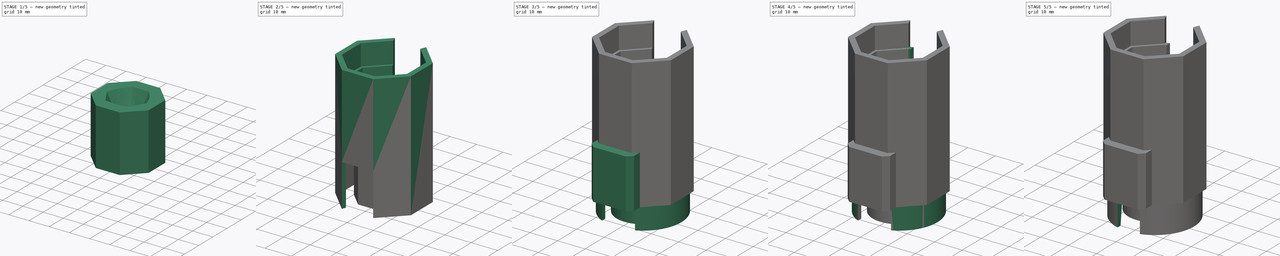
[diagram: build sequence overview — one tinted view per stage of 5, left to right]
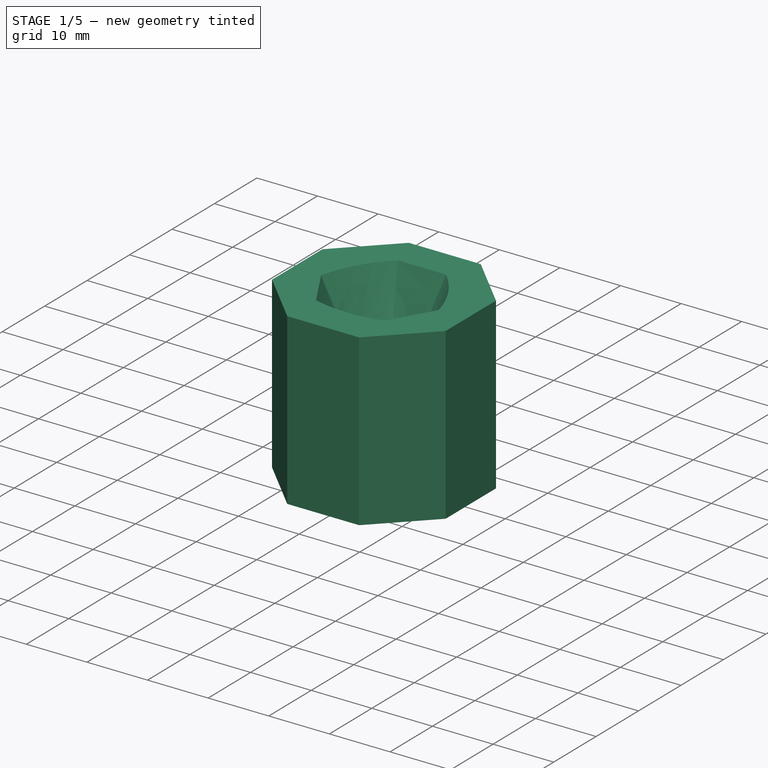
[diagram: stage 1 of 5 — iso view after this stage's code; geometry added in this stage tinted green]
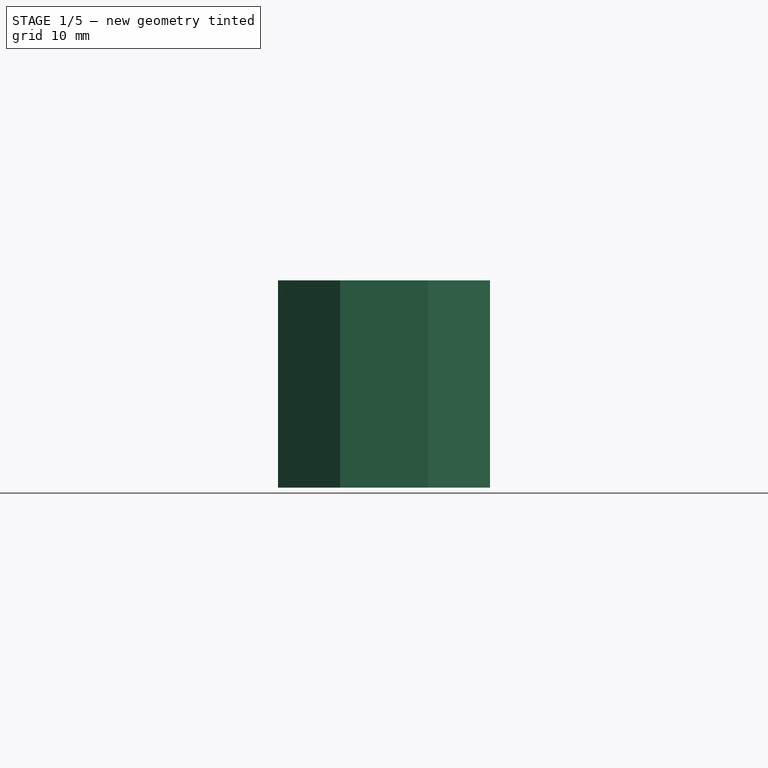
[diagram: stage 1 of 5 — front view after this stage's code; geometry added in this stage tinted green]
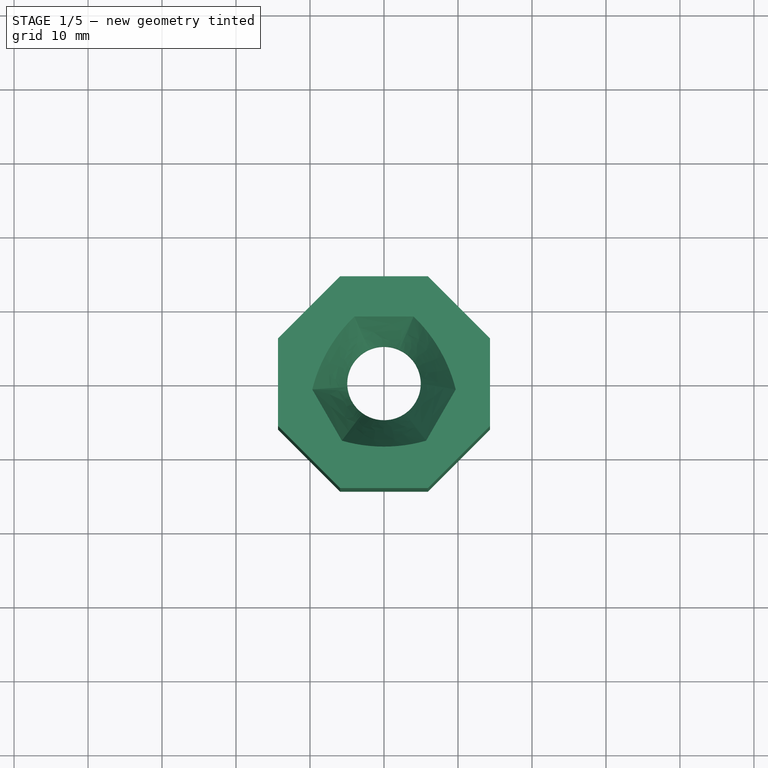
[diagram: stage 1 of 5 — top view after this stage's code; geometry added in this stage tinted green]
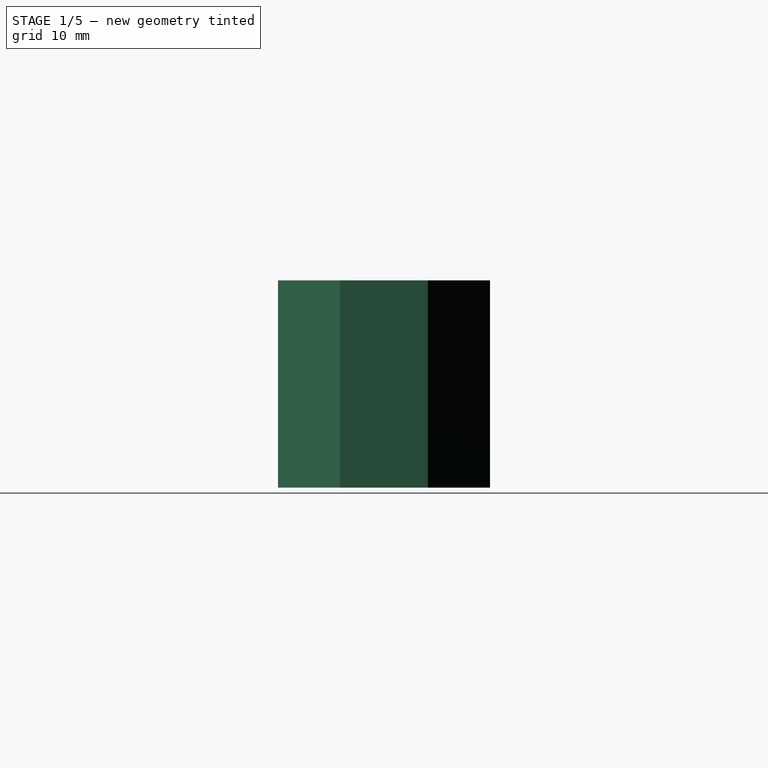
[diagram: stage 1 of 5 — right view after this stage's code; geometry added in this stage tinted green]
FCSTD DOCUMENT  (FreeCAD 1.0R39285 (Git))
Label: Solder_iron_spacer
License: CERN Open Hardware Licence permissive
LicenseURL: https://cern-ohl.web.cern.ch/
objects: Sketcher::SketchObject×27, PartDesign::Pad×19, PartDesign::Pocket×7, PartDesign::Plane×5, PartDesign::Body×3, PartDesign::SubtractiveLoft×2, PartDesign::Fillet×2, PartDesign::Draft×1, PartDesign::Chamfer×1
note: 158 computed .brp shape members not serialized (recipe doc carries the construction recipe); baked Part::Feature solids carry a one-line shape summary decoded from their .brp

FEATURE [PartDesign::Body] Body001
  AllowCompound = false
  Group = -> [Sketch004,Pad003,Sketch005,Pad004,Sketch006,Pad005,Sketch007,Sketch011,Pocket001,Pad006,Sketch012,DatumPlane,Sketch013,SubtractiveLoft,Fillet,Sketch014,Pad007,Sketch015,Pad008,Sketch016,Pad009,Pocket003]
  Origin = -> Origin001
  Placement = pos=(0,0,8) rot=(0,0,1;0rad)
  Tip = -> Pocket003
FEATURE [Sketcher::SketchObject] Sketch017
  ArcFitTolerance = 1e-06
  AttachmentSupport = -> [XY_Plane002]
  FullyConstrained = true
  MakeInternals = false
  MapMode = 5
  sketch-geometry (19):
    g0: LineSegment StartX=-5.93159 StartY=14.3201 StartZ=0 EndX=-14.3201 EndY=5.93159 EndZ=0
    g1: LineSegment StartX=-14.3201 StartY=5.93159 StartZ=0 EndX=-14.3201 EndY=-5.93159 EndZ=0
    g2: LineSegment StartX=-14.3201 StartY=-5.93159 StartZ=0 EndX=-5.93159 EndY=-14.3201 EndZ=0
    g3: LineSegment StartX=-5.93159 StartY=-14.3201 StartZ=0 EndX=5.93159 EndY=-14.3201 EndZ=0
    g4: LineSegment StartX=5.93159 StartY=-14.3201 StartZ=0 EndX=14.3201 EndY=-5.93159 EndZ=0
    g5: LineSegment StartX=14.3201 StartY=-5.93159 StartZ=0 EndX=14.3201 EndY=5.93159 EndZ=0
    g6: LineSegment StartX=14.3201 StartY=5.93159 StartZ=0 EndX=5.93159 EndY=14.3201 EndZ=0
    g7: LineSegment StartX=5.93159 StartY=14.3201 StartZ=0 EndX=-5.93159 EndY=14.3201 EndZ=0
    g8: Circle [constr] CenterX=0 CenterY=0 CenterZ=0 NormalX=0 NormalY=0 NormalZ=1 AngleXU=0 Radius=15.5
    g9: LineSegment StartX=-5.35169 StartY=12.9201 StartZ=0 EndX=-12.9201 EndY=5.35169 EndZ=0
    g10: LineSegment StartX=-12.9201 StartY=5.35169 StartZ=0 EndX=-12.9201 EndY=-5.35169 EndZ=0
    g11: LineSegment StartX=-12.9201 StartY=-5.35169 StartZ=0 EndX=-5.35169 EndY=-12.9201 EndZ=0
    g12: LineSegment StartX=-5.35169 StartY=-12.9201 StartZ=0 EndX=5.35169 EndY=-12.9201 EndZ=0
    g13: LineSegment StartX=5.35169 StartY=-12.9201 StartZ=0 EndX=12.9201 EndY=-5.35169 EndZ=0
    g14: LineSegment StartX=12.9201 StartY=-5.35169 StartZ=0 EndX=12.9201 EndY=5.35169 EndZ=0
    g15: LineSegment StartX=12.9201 StartY=5.35169 StartZ=0 EndX=5.35169 EndY=12.9201 EndZ=0
    g16: LineSegment StartX=5.35169 StartY=12.9201 StartZ=0 EndX=-5.35169 EndY=12.9201 EndZ=0
    g17: Circle [constr] CenterX=0 CenterY=0 CenterZ=0 NormalX=0 NormalY=0 NormalZ=1 AngleXU=0 Radius=13.9847
    g18: LineSegment [constr] StartX=4e-16 StartY=14.3201 StartZ=0 EndX=-6e-16 EndY=12.9201 EndZ=0
  constraints (42):
    c: Coincident(g0,g1)
    c: Coincident(g1,g2)
    c: Coincident(g2,g3)
    c: Coincident(g3,g4)
    c: Coincident(g4,g5)
    c: Coincident(g5,g6)
    c: Coincident(g6,g7)
    c: Coincident(g7,g0)
    c: Equal(g0, g1-g7) x7
    c: PointOnObject(g0,g8)
    c: PointOnObject(g1,g8)
    c: PointOnObject(g2,g8)
    c: PointOnObject(g3,g8)
    c: PointOnObject(g4,g8)
    c: PointOnObject(g5,g8)
    c: PointOnObject(g6,g8)
    c: PointOnObject(g7,g8)
    c: Coincident(g8,g-1)
    c: Horizontal(g7)
    c: Diameter(g8) = 31
    c: Coincident(g9,g10)
    c: Coincident(g10,g11)
    c: Coincident(g11,g12)
    c: Coincident(g12,g13)
    c: Coincident(g13,g14)
    c: Coincident(g14,g15)
    c: Coincident(g15,g16)
    c: Coincident(g16,g9)
    c: Equal(g9, g10-g16) x7
    c: PointOnObject(g9,g17)
    c: PointOnObject(g10,g17)
    c: PointOnObject(g11,g17)
    c: PointOnObject(g12,g17)
    c: PointOnObject(g13,g17)
    c: PointOnObject(g14,g17)
    c: PointOnObject(g15,g17)
    c: PointOnObject(g16,g17)
    c: Coincident(g17,g8)
    c: Symmetric(g7,g7,g18)
    c: Symmetric(g16,g16,g18)
    c: Distance(g18,g18) = 1.4
    c: Parallel(g3,g12)
FEATURE [PartDesign::Pad] Pad010
  Direction = (0,0,1)
  Length = 16
  Length2 = 10
  Profile = -> Sketch017
  ReferenceAxis = -> Sketch017 [N_Axis]
  Refine = true
  Suppressed = false
  Type = 0
FEATURE [Sketcher::SketchObject] Sketch018
  ArcFitTolerance = 1e-06
  AttachmentSupport = -> [Pad010]
  ExternalGeometry = -> [Pad010]
  FullyConstrained = true
  MakeInternals = false
  MapMode = 5
  Placement = pos=(0,0,16) rot=(0,0,1;0rad)
  sketch-geometry (9):
    g0: LineSegment StartX=-5.93159 StartY=14.3201 StartZ=0 EndX=-14.3201 EndY=5.93159 EndZ=0
    g1: LineSegment StartX=-14.3201 StartY=5.93159 StartZ=0 EndX=-14.3201 EndY=-5.93159 EndZ=0
    g2: LineSegment StartX=-14.3201 StartY=-5.93159 StartZ=0 EndX=-5.93159 EndY=-14.3201 EndZ=0
    g3: LineSegment StartX=-5.93159 StartY=-14.3201 StartZ=0 EndX=5.93159 EndY=-14.3201 EndZ=0
    g4: LineSegment StartX=5.93159 StartY=-14.3201 StartZ=0 EndX=14.3201 EndY=-5.93159 EndZ=0
    g5: LineSegment StartX=14.3201 StartY=-5.93159 StartZ=0 EndX=14.3201 EndY=5.93159 EndZ=0
    g6: LineSegment StartX=14.3201 StartY=5.93159 StartZ=0 EndX=5.93159 EndY=14.3201 EndZ=0
    g7: LineSegment StartX=5.93159 StartY=14.3201 StartZ=0 EndX=-5.93159 EndY=14.3201 EndZ=0
    g8: Circle [constr] CenterX=0 CenterY=0 CenterZ=0 NormalX=0 NormalY=0 NormalZ=1 AngleXU=0 Radius=15.5
  constraints (20):
    c: Coincident(g0,g1)
    c: Coincident(g1,g2)
    c: Coincident(g2,g3)
    c: Coincident(g3,g4)
    c: Coincident(g4,g5)
    c: Coincident(g5,g6)
    c: Coincident(g6,g7)
    c: Coincident(g7,g0)
    c: Equal(g0, g1-g7) x7
    c: PointOnObject(g0,g8)
    c: PointOnObject(g1,g8)
    c: PointOnObject(g2,g8)
    c: PointOnObject(g3,g8)
    c: PointOnObject(g4,g8)
    c: PointOnObject(g5,g8)
    c: PointOnObject(g6,g8)
    c: PointOnObject(g7,g8)
    c: Coincident(g8,g-1)
    c: Parallel(g7,g-3)
    c: Equal(g7,g-3)
FEATURE [PartDesign::Pad] Pad011
  BaseFeature = -> Pad010
  Direction = (0,0,1)
  Length = 2
  Length2 = 10
  Profile = -> Sketch018
  ReferenceAxis = -> Sketch018 [N_Axis]
  Refine = true
  Suppressed = false
  Type = 0
FEATURE [Sketcher::SketchObject] Sketch019
  ArcFitTolerance = 1e-06
  AttachmentSupport = -> [Pad011]
  ExternalGeometry = -> [Pad011]
  FullyConstrained = true
  MakeInternals = false
  MapMode = 5
  Placement = pos=(0,0,16) rot=(1,0,0;3.14159rad)
  sketch-geometry (20):
    g0: LineSegment StartX=-3.65342 StartY=8.82013 StartZ=0 EndX=-8.82013 EndY=3.65342 EndZ=0
    g1: LineSegment StartX=-8.82013 StartY=3.65342 StartZ=0 EndX=-8.82013 EndY=-3.65342 EndZ=0
    g2: LineSegment StartX=-8.82013 StartY=-3.65342 StartZ=0 EndX=-3.65342 EndY=-8.82013 EndZ=0
    g3: LineSegment StartX=-3.65342 StartY=-8.82013 StartZ=0 EndX=3.65342 EndY=-8.82013 EndZ=0
    g4: LineSegment StartX=3.65342 StartY=-8.82013 StartZ=0 EndX=8.82013 EndY=-3.65342 EndZ=0
    g5: LineSegment StartX=8.82013 StartY=-3.65342 StartZ=0 EndX=8.82013 EndY=3.65342 EndZ=0
    g6: LineSegment StartX=8.82013 StartY=3.65342 StartZ=0 EndX=3.65342 EndY=8.82013 EndZ=0
    g7: LineSegment StartX=3.65342 StartY=8.82013 StartZ=0 EndX=-3.65342 EndY=8.82013 EndZ=0
    g8: Circle [constr] CenterX=0 CenterY=0 CenterZ=0 NormalX=0 NormalY=0 NormalZ=1 AngleXU=0 Radius=9.54684
    g9: LineSegment StartX=-3.07352 StartY=7.42013 StartZ=0 EndX=-7.42013 EndY=3.07352 EndZ=0
    g10: LineSegment StartX=-7.42013 StartY=3.07352 StartZ=0 EndX=-7.42013 EndY=-3.07352 EndZ=0
    g11: LineSegment StartX=-7.42013 StartY=-3.07352 StartZ=0 EndX=-3.07352 EndY=-7.42013 EndZ=0
    g12: LineSegment StartX=-3.07352 StartY=-7.42013 StartZ=0 EndX=3.07352 EndY=-7.42013 EndZ=0
    g13: LineSegment StartX=3.07352 StartY=-7.42013 StartZ=0 EndX=7.42013 EndY=-3.07352 EndZ=0
    g14: LineSegment StartX=7.42013 StartY=-3.07352 StartZ=0 EndX=7.42013 EndY=3.07352 EndZ=0
    g15: LineSegment StartX=7.42013 StartY=3.07352 StartZ=0 EndX=3.07352 EndY=7.42013 EndZ=0
    g16: LineSegment StartX=3.07352 StartY=7.42013 StartZ=0 EndX=-3.07352 EndY=7.42013 EndZ=0
    g17: Circle [constr] CenterX=0 CenterY=0 CenterZ=0 NormalX=0 NormalY=0 NormalZ=1 AngleXU=0 Radius=8.03149
    g18: LineSegment [constr] StartX=1.8e-15 StartY=14.3201 StartZ=0 EndX=-1e-16 EndY=12.9201 EndZ=0
    g19: LineSegment [constr] StartX=1.33e-14 StartY=8.82013 StartZ=0 EndX=1.02e-14 EndY=7.42013 EndZ=0
  constraints (44):
    c: Coincident(g0,g1)
    c: Coincident(g1,g2)
    c: Coincident(g2,g3)
    c: Coincident(g3,g4)
    c: Coincident(g4,g5)
    c: Coincident(g5,g6)
    c: Coincident(g6,g7)
    c: Coincident(g7,g0)
    c: Equal(g0, g1-g7) x7
    c: PointOnObject(g0,g8)
    c: PointOnObject(g1,g8)
    c: PointOnObject(g2,g8)
    c: PointOnObject(g3,g8)
    c: PointOnObject(g4,g8)
    c: PointOnObject(g5,g8)
    c: PointOnObject(g6,g8)
    c: PointOnObject(g7,g8)
    c: Coincident(g8,g-1)
    c: Coincident(g9,g10)
    c: Coincident(g10,g11)
    c: Coincident(g11,g12)
    c: Coincident(g12,g13)
    c: Coincident(g13,g14)
    c: Coincident(g14,g15)
    c: Coincident(g15,g16)
    c: Coincident(g16,g9)
    c: Equal(g9, g10-g16) x7
    c: PointOnObject(g9,g17)
    c: PointOnObject(g10,g17)
    c: PointOnObject(g11,g17)
    c: PointOnObject(g12,g17)
    c: PointOnObject(g13,g17)
    c: PointOnObject(g14,g17)
    c: PointOnObject(g15,g17)
    c: PointOnObject(g16,g17)
    c: Coincident(g17,g8)
    c: Parallel(g-3,g7)
    c: Parallel(g7,g16)
    c: Symmetric(g-3,g-3,g18)
    c: Symmetric(g-4,g-4,g18)
    c: Symmetric(g7,g7,g19)
    c: Symmetric(g16,g16,g19)
    c: Equal(g19,g18)
    c: DistanceY(g19,g18) = 4.1
FEATURE [PartDesign::Pad] Pad012
  BaseFeature = -> Pad011
  Direction = (0,0,-1)
  Length = 10
  Length2 = 10
  Profile = -> Sketch019
  ReferenceAxis = -> Sketch019 [N_Axis]
  Refine = true
  Suppressed = false
  Type = 3
  UpToFace = -> Pad011 [Face1]
FEATURE [Sketcher::SketchObject] Sketch020
  ArcFitTolerance = 1e-06
  AttachmentSupport = -> [Pad012]
  ExternalGeometry = -> [Pad012]
  FullyConstrained = true
  MakeInternals = false
  MapMode = 5
  Placement = pos=(0,0,18) rot=(0,0,1;0rad)
  sketch-geometry (10):
    g0: LineSegment [constr] StartX=-4.96585 StartY=2.05692 StartZ=0 EndX=-4.96585 EndY=-2.05692 EndZ=0
    g1: LineSegment [constr] StartX=-4.96585 StartY=-2.05692 StartZ=0 EndX=-2.05692 EndY=-4.96585 EndZ=0
    g2: LineSegment [constr] StartX=-2.05692 StartY=-4.96585 StartZ=0 EndX=2.05692 EndY=-4.96585 EndZ=0
    g3: LineSegment [constr] StartX=2.05692 StartY=-4.96585 StartZ=0 EndX=4.96585 EndY=-2.05692 EndZ=0
    g4: LineSegment [constr] StartX=4.96585 StartY=-2.05692 StartZ=0 EndX=4.96585 EndY=2.05692 EndZ=0
    g5: LineSegment [constr] StartX=4.96585 StartY=2.05692 StartZ=0 EndX=2.05692 EndY=4.96585 EndZ=0
    g6: LineSegment [constr] StartX=2.05692 StartY=4.96585 StartZ=0 EndX=-2.05692 EndY=4.96585 EndZ=0
    g7: LineSegment [constr] StartX=-2.05692 StartY=4.96585 StartZ=0 EndX=-4.96585 EndY=2.05692 EndZ=0
    g8: Circle [constr] CenterX=0 CenterY=0 CenterZ=0 NormalX=0 NormalY=0 NormalZ=1 AngleXU=0 Radius=5.375
    g9: Circle CenterX=0 CenterY=0 CenterZ=0 NormalX=0 NormalY=0 NormalZ=1 AngleXU=0 Radius=4.96585
  constraints (22):
    c: Coincident(g0,g1)
    c: Coincident(g1,g2)
    c: Coincident(g2,g3)
    c: Coincident(g3,g4)
    c: Coincident(g4,g5)
    c: Coincident(g5,g6)
    c: Coincident(g6,g7)
    c: Coincident(g7,g0)
    c: Equal(g0, g1-g7) x7
    c: PointOnObject(g0,g8)
    c: PointOnObject(g1,g8)
    c: PointOnObject(g2,g8)
    c: PointOnObject(g3,g8)
    c: PointOnObject(g4,g8)
    c: PointOnObject(g5,g8)
    c: PointOnObject(g6,g8)
    c: PointOnObject(g7,g8)
    c: Coincident(g8,g-1)
    c: Parallel(g-3,g6)
    c: Diameter(g8) = 10.75
    c: Coincident(g9,g8)
    c: Tangent(g9,g6)
FEATURE [PartDesign::Pocket] Pocket004
  BaseFeature = -> Pad012
  Direction = (0,0,-1)
  Length = 5
  Length2 = 5
  Profile = -> Sketch020
  ReferenceAxis = -> Sketch020 [N_Axis]
  Refine = true
  Suppressed = false
  Type = 1
FEATURE [PartDesign::Plane] DatumPlane001
  AttachmentOffset = pos=(0,0,10) rot=(0,0,1;0rad)
  AttachmentSupport = -> [Pocket004]
  Length = 60
  MapMode = 5
  Placement = pos=(0,0,28) rot=(0,0,1;0rad)
  ResizeMode = 0
  Width = 60
FEATURE [PartDesign::Plane] DatumPlane002
  AttachmentOffset = pos=(0,0,13.5) rot=(0,0,1;0rad)
  AttachmentSupport = -> [Pocket004]
  Length = 60
  MapMode = 5
  Placement = pos=(0,0,31.5) rot=(0,0,1;0rad)
  ResizeMode = 0
  Width = 60
FEATURE [PartDesign::Plane] DatumPlane003
  AttachmentOffset = pos=(0,0,21.5) rot=(0,0,1;0rad)
  AttachmentSupport = -> [Pocket004]
  Length = 60
  MapMode = 5
  Placement = pos=(0,0,39.5) rot=(0,0,1;0rad)
  ResizeMode = 0
  Width = 60
FEATURE [PartDesign::Plane] DatumPlane004
  AttachmentOffset = pos=(0,0,29.5) rot=(0,0,1;0rad)
  AttachmentSupport = -> [Pocket004]
  Length = 60
  MapMode = 5
  Placement = pos=(0,0,47.5) rot=(0,0,1;0rad)
  ResizeMode = 0
  Width = 60
FEATURE [Sketcher::SketchObject] Sketch021
  ArcFitTolerance = 1e-06
  AttachmentSupport = -> [Pocket004]
  ExternalGeometry = -> [Pocket004]
  FullyConstrained = true
  MakeInternals = false
  MapMode = 5
  Placement = pos=(0,0,18) rot=(0,0,1;0rad)
  sketch-geometry (19):
    g0: LineSegment StartX=-5.93159 StartY=14.3201 StartZ=0 EndX=-14.3201 EndY=5.93159 EndZ=0
    g1: LineSegment StartX=-14.3201 StartY=5.93159 StartZ=0 EndX=-14.3201 EndY=-5.93159 EndZ=0
    g2: LineSegment StartX=-14.3201 StartY=-5.93159 StartZ=0 EndX=-5.93159 EndY=-14.3201 EndZ=0
    g3: LineSegment StartX=-5.93159 StartY=-14.3201 StartZ=0 EndX=5.93159 EndY=-14.3201 EndZ=0
    g4: LineSegment StartX=5.93159 StartY=-14.3201 StartZ=0 EndX=14.3201 EndY=-5.93159 EndZ=0
    g5: LineSegment StartX=14.3201 StartY=-5.93159 StartZ=0 EndX=14.3201 EndY=5.93159 EndZ=0
    g6: LineSegment StartX=14.3201 StartY=5.93159 StartZ=0 EndX=5.93159 EndY=14.3201 EndZ=0
    g7: LineSegment StartX=5.93159 StartY=14.3201 StartZ=0 EndX=-5.93159 EndY=14.3201 EndZ=0
    g8: Circle [constr] CenterX=0 CenterY=0 CenterZ=0 NormalX=0 NormalY=0 NormalZ=1 AngleXU=0 Radius=15.5
    g9: LineSegment [constr] StartX=-2.05692 StartY=4.96585 StartZ=0 EndX=-4.96585 EndY=2.05692 EndZ=0
    g10: LineSegment [constr] StartX=-4.96585 StartY=2.05692 StartZ=0 EndX=-4.96585 EndY=-2.05692 EndZ=0
    g11: LineSegment [constr] StartX=-4.96585 StartY=-2.05692 StartZ=0 EndX=-2.05692 EndY=-4.96585 EndZ=0
    g12: LineSegment [constr] StartX=-2.05692 StartY=-4.96585 StartZ=0 EndX=2.05692 EndY=-4.96585 EndZ=0
    g13: LineSegment [constr] StartX=2.05692 StartY=-4.96585 StartZ=0 EndX=4.96585 EndY=-2.05692 EndZ=0
    g14: LineSegment [constr] StartX=4.96585 StartY=-2.05692 StartZ=0 EndX=4.96585 EndY=2.05692 EndZ=0
    g15: LineSegment [constr] StartX=4.96585 StartY=2.05692 StartZ=0 EndX=2.05692 EndY=4.96585 EndZ=0
    g16: LineSegment [constr] StartX=2.05692 StartY=4.96585 StartZ=0 EndX=-2.05692 EndY=4.96585 EndZ=0
    g17: Circle [constr] CenterX=0 CenterY=0 CenterZ=0 NormalX=0 NormalY=0 NormalZ=1 AngleXU=0 Radius=5.375
    g18: Circle CenterX=0 CenterY=0 CenterZ=0 NormalX=0 NormalY=0 NormalZ=1 AngleXU=0 Radius=4.96585
  constraints (42):
    c: Coincident(g0,g1)
    c: Coincident(g1,g2)
    c: Coincident(g2,g3)
    c: Coincident(g3,g4)
    c: Coincident(g4,g5)
    c: Coincident(g5,g6)
    c: Coincident(g6,g7)
    c: Coincident(g7,g0)
    c: Equal(g0, g1-g7) x7
    c: PointOnObject(g0,g8)
    c: PointOnObject(g1,g8)
    c: PointOnObject(g2,g8)
    c: PointOnObject(g3,g8)
    c: PointOnObject(g4,g8)
    c: PointOnObject(g5,g8)
    c: PointOnObject(g6,g8)
    c: PointOnObject(g7,g8)
    c: Coincident(g8,g-1)
    c: Coincident(g9,g10)
    c: Coincident(g10,g11)
    c: Coincident(g11,g12)
    c: Coincident(g12,g13)
    c: Coincident(g13,g14)
    c: Coincident(g14,g15)
    c: Coincident(g15,g16)
    c: Coincident(g16,g9)
    c: Equal(g9, g10-g16) x7
    c: PointOnObject(g9,g17)
    c: PointOnObject(g10,g17)
    c: PointOnObject(g11,g17)
    c: PointOnObject(g12,g17)
    c: PointOnObject(g13,g17)
    c: PointOnObject(g14,g17)
    c: PointOnObject(g15,g17)
    c: PointOnObject(g16,g17)
    c: Coincident(g17,g8)
    c: Parallel(g7,g16)
    c: Parallel(g16,g-3)
    c: Equal(g7,g-3)
    c: Equal(g16,g-4)
    c: Coincident(g18,g8)
    c: Tangent(g18,g16)
FEATURE [PartDesign::Pad] Pad013
  BaseFeature = -> Pocket004
  Direction = (0,0,1)
  Length = 10
  Length2 = 10
  Profile = -> Sketch021
  ReferenceAxis = -> Sketch021 [N_Axis]
  Refine = true
  Suppressed = false
  Type = 0
FEATURE [Sketcher::SketchObject] Sketch022
  ArcFitTolerance = 1e-06
  AttachmentSupport = -> [Pad013]
  FullyConstrained = true
  MakeInternals = false
  MapMode = 5
  Placement = pos=(0,0,28) rot=(0,0,1;0rad)
  sketch-geometry (16):
    g0: LineSegment [constr] StartX=-1.8e-15 StartY=11.8934 StartZ=0 EndX=-10.3 EndY=-5.94671 EndZ=0
    g1: LineSegment [constr] StartX=-10.3 StartY=-5.94671 StartZ=0 EndX=10.3 EndY=-5.94671 EndZ=0
    g2: LineSegment [constr] StartX=10.3 StartY=-5.94671 StartZ=0 EndX=-3.6e-15 EndY=11.8934 EndZ=0
    g3: Circle [constr] CenterX=0 CenterY=0 CenterZ=0 NormalX=0 NormalY=0 NormalZ=1 AngleXU=0 Radius=11.8934
    g4: ArcOfCircle [constr] CenterX=10.3 CenterY=-5.94671 CenterZ=0 NormalX=0 NormalY=0 NormalZ=1 AngleXU=0 Radius=20.6 StartAngle=2.0944 EndAngle=3.14159
    g5: ArcOfCircle [constr] CenterX=-1.8e-15 CenterY=11.8934 CenterZ=0 NormalX=0 NormalY=0 NormalZ=1 AngleXU=0 Radius=20.6 StartAngle=4.18879 EndAngle=5.23599
    g6: ArcOfCircle [constr] CenterX=-10.3 CenterY=-5.94671 CenterZ=0 NormalX=0 NormalY=0 NormalZ=1 AngleXU=0 Radius=20.6 StartAngle=1e-16 EndAngle=1.0472
    g7: LineSegment StartX=-4 StartY=8.88131 StartZ=0 EndX=4 EndY=8.88131 EndZ=0
    g8: LineSegment StartX=9.69144 StartY=-0.976552 StartZ=0 EndX=5.69144 EndY=-7.90475 EndZ=0
    g9: LineSegment StartX=-9.69144 StartY=-0.976552 StartZ=0 EndX=-5.69144 EndY=-7.90475 EndZ=0
    g10: LineSegment [constr] StartX=10.3 StartY=-5.94671 StartZ=0 EndX=-5.15 EndY=2.97335 EndZ=0
    g11: LineSegment [constr] StartX=-10.3 StartY=-5.94671 StartZ=0 EndX=5.15 EndY=2.97335 EndZ=0
    g12: LineSegment [constr] StartX=-1.8e-15 StartY=11.8934 StartZ=0 EndX=1.1e-15 EndY=-5.94671 EndZ=0
    g13: ArcOfCircle CenterX=10.3 CenterY=-5.94671 CenterZ=0 NormalX=0 NormalY=0 NormalZ=1 AngleXU=0 Radius=20.6 StartAngle=2.33807 EndAngle=2.89792
    g14: ArcOfCircle CenterX=-10.3 CenterY=-5.94671 CenterZ=0 NormalX=0 NormalY=0 NormalZ=1 AngleXU=0 Radius=20.6 StartAngle=0.243674 EndAngle=0.803524
    g15: ArcOfCircle CenterX=5.7e-15 CenterY=11.8934 CenterZ=0 NormalX=0 NormalY=0 NormalZ=1 AngleXU=0 Radius=20.6 StartAngle=4.43246 EndAngle=4.99231
  constraints (46):
    c: Coincident(g0,g1)
    c: Coincident(g1,g2)
    c: Coincident(g2,g0)
    c: Equal(g0,g1)
    c: Equal(g0,g2)
    c: PointOnObject(g0,g3)
    c: PointOnObject(g1,g3)
    c: PointOnObject(g2,g3)
    c: Coincident(g3,g-1)
    c: PointOnObject(g2,g-2)
    c: DistanceX(g1,g1) = 20.6
    c: Coincident(g5,g4)
    c: Coincident(g5,g4)
    c: Coincident(g4,g5)
    c: Coincident(g4,g6)
    c: Coincident(g4,g0)
    c: Coincident(g4,g6)
    c: Coincident(g4,g0)
    c: PointOnObject(g6,g5)
    c: PointOnObject(g7,g4)
    c: PointOnObject(g7,g6)
    c: PointOnObject(g8,g6)
    c: PointOnObject(g8,g5)
    c: PointOnObject(g9,g4)
    c: PointOnObject(g9,g5)
    c: Coincident(g10,g6)
    c: Symmetric(g0,g0,g10)
    c: Coincident(g11,g0)
    c: Symmetric(g2,g2,g11)
    c: Coincident(g12,g0)
    c: Symmetric(g1,g1,g12)
    c: Equal(g7,g9)
    c: Equal(g9,g8)
    c: Perpendicular(g12,g7)
    c: Perpendicular(g9,g11)
    c: Perpendicular(g10,g8)
    c: DistanceX(g7,g7) = 8
    c: Coincident(g13,g9)
    c: Coincident(g13,g7)
    c: Equal(g13,g4)
    c: Coincident(g9,g15)
    c: Coincident(g15,g8)
    c: Equal(g15,g5)
    c: Coincident(g14,g7)
    c: Coincident(g14,g8)
    c: Equal(g14,g6)
FEATURE [PartDesign::SubtractiveLoft] SubtractiveLoft001
  BaseFeature = -> Pad013
  Closed = false
  Profile = -> Sketch022
  Refine = true
  Ruled = false
  Sections = -> [Sketch020]
  Suppressed = false
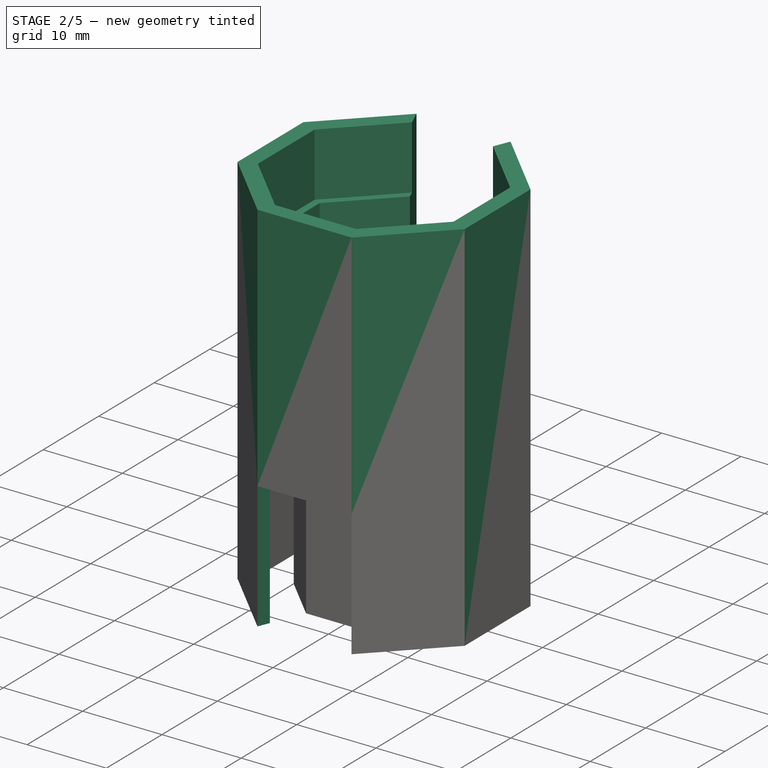
[diagram: stage 2 of 5 — iso view after this stage's code; geometry added in this stage tinted green]
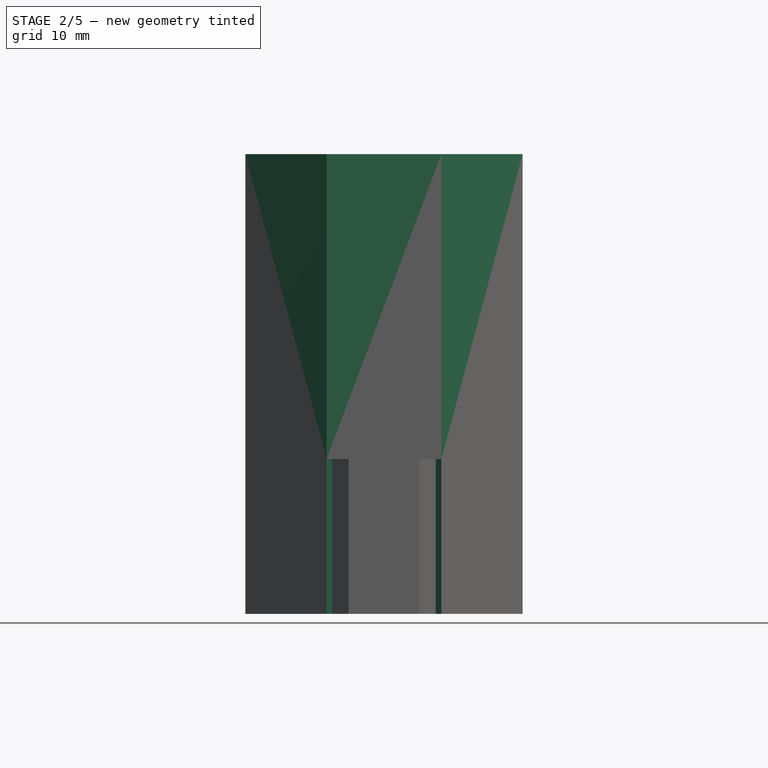
[diagram: stage 2 of 5 — front view after this stage's code; geometry added in this stage tinted green]
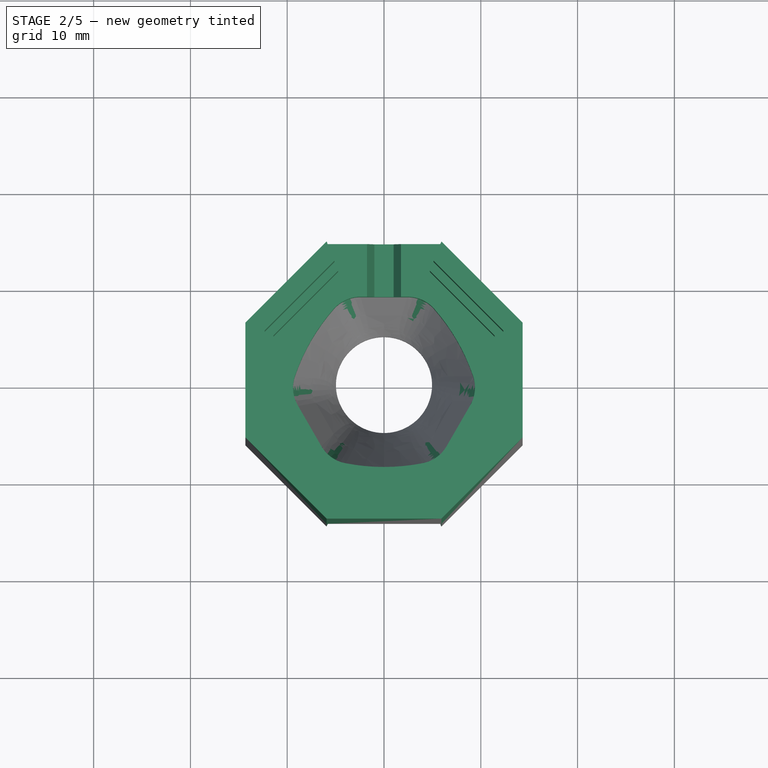
[diagram: stage 2 of 5 — top view after this stage's code; geometry added in this stage tinted green]
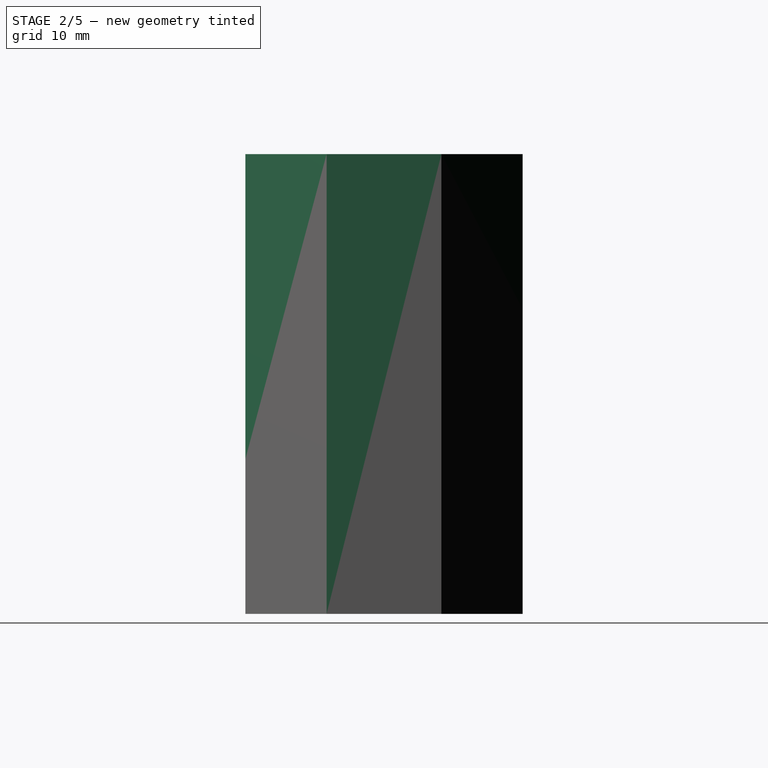
[diagram: stage 2 of 5 — right view after this stage's code; geometry added in this stage tinted green]
FEATURE [PartDesign::Fillet] Fillet001
  Base = -> SubtractiveLoft001 [Edge63,Edge73,Edge71,Edge69,Edge67,Edge65]
  BaseFeature = -> SubtractiveLoft001
  Radius = 4
  Refine = true
  SupportTransform = false
  Suppressed = false
  UseAllEdges = false
FEATURE [PartDesign::Pad] Pad014
  BaseFeature = -> Fillet001
  Direction = (0,0,1)
  Length = 3.5
  Length2 = 10
  Profile = -> Fillet001 [Face1]
  Refine = true
  Suppressed = false
  Type = 0
FEATURE [Sketcher::SketchObject] Sketch023
  ArcFitTolerance = 1e-06
  AttachmentSupport = -> [Pad014]
  ExternalGeometry = -> [Pad014]
  FullyConstrained = true
  MakeInternals = false
  MapMode = 5
  Placement = pos=(0,0,31.5) rot=(0,0,1;0rad)
  sketch-geometry (18):
    g0: LineSegment StartX=-5.93159 StartY=14.3201 StartZ=0 EndX=-14.3201 EndY=5.93159 EndZ=0
    g1: LineSegment StartX=-14.3201 StartY=5.93159 StartZ=0 EndX=-14.3201 EndY=-5.93159 EndZ=0
    g2: LineSegment StartX=-14.3201 StartY=-5.93159 StartZ=0 EndX=-5.93159 EndY=-14.3201 EndZ=0
    g3: LineSegment StartX=-5.93159 StartY=-14.3201 StartZ=0 EndX=5.93159 EndY=-14.3201 EndZ=0
    g4: LineSegment StartX=5.93159 StartY=-14.3201 StartZ=0 EndX=14.3201 EndY=-5.93159 EndZ=0
    g5: LineSegment StartX=14.3201 StartY=-5.93159 StartZ=0 EndX=14.3201 EndY=5.93159 EndZ=0
    g6: LineSegment StartX=14.3201 StartY=5.93159 StartZ=0 EndX=5.93159 EndY=14.3201 EndZ=0
    g7: LineSegment StartX=5.93159 StartY=14.3201 StartZ=0 EndX=-5.93159 EndY=14.3201 EndZ=0
    g8: Circle [constr] CenterX=0 CenterY=0 CenterZ=0 NormalX=0 NormalY=0 NormalZ=1 AngleXU=0 Radius=15.5
    g9: LineSegment StartX=-11.433 StartY=4.73571 StartZ=0 EndX=-11.433 EndY=-4.73571 EndZ=0
    g10: LineSegment StartX=-11.433 StartY=-4.73571 StartZ=0 EndX=-4.73571 EndY=-11.433 EndZ=0
    g11: LineSegment StartX=-4.73571 StartY=-11.433 StartZ=0 EndX=4.73571 EndY=-11.433 EndZ=0
    g12: LineSegment StartX=4.73571 StartY=-11.433 StartZ=0 EndX=11.433 EndY=-4.73571 EndZ=0
    g13: LineSegment StartX=11.433 StartY=-4.73571 StartZ=0 EndX=11.433 EndY=4.73571 EndZ=0
    g14: LineSegment StartX=11.433 StartY=4.73571 StartZ=0 EndX=4.73571 EndY=11.433 EndZ=0
    g15: LineSegment StartX=4.73571 StartY=11.433 StartZ=0 EndX=-4.73571 EndY=11.433 EndZ=0
    g16: LineSegment StartX=-4.73571 StartY=11.433 StartZ=0 EndX=-11.433 EndY=4.73571 EndZ=0
    g17: Circle [constr] CenterX=0 CenterY=0 CenterZ=0 NormalX=0 NormalY=0 NormalZ=1 AngleXU=0 Radius=12.375
  constraints (40):
    c: Coincident(g0,g1)
    c: Coincident(g1,g2)
    c: Coincident(g2,g3)
    c: Coincident(g3,g4)
    c: Coincident(g4,g5)
    c: Coincident(g5,g6)
    c: Coincident(g6,g7)
    c: Coincident(g7,g0)
    c: Equal(g0, g1-g7) x7
    c: PointOnObject(g0,g8)
    c: PointOnObject(g1,g8)
    c: PointOnObject(g2,g8)
    c: PointOnObject(g3,g8)
    c: PointOnObject(g4,g8)
    c: PointOnObject(g5,g8)
    c: PointOnObject(g6,g8)
    c: PointOnObject(g7,g8)
    c: Coincident(g8,g-1)
    c: Parallel(g7,g-3)
    c: Equal(g7,g-3)
    c: Coincident(g9,g10)
    c: Coincident(g10,g11)
    c: Coincident(g11,g12)
    c: Coincident(g12,g13)
    c: Coincident(g13,g14)
    c: Coincident(g14,g15)
    c: Coincident(g15,g16)
    c: Coincident(g16,g9)
    c: Equal(g9, g10-g16) x7
    c: PointOnObject(g9,g17)
    c: PointOnObject(g10,g17)
    c: PointOnObject(g11,g17)
    c: PointOnObject(g12,g17)
    c: PointOnObject(g13,g17)
    c: PointOnObject(g14,g17)
    c: PointOnObject(g15,g17)
    c: PointOnObject(g16,g17)
    c: Coincident(g17,g8)
    c: Parallel(g7,g15)
    c: Diameter(g17) = 24.75
FEATURE [PartDesign::Pad] Pad015
  BaseFeature = -> Pad014
  Direction = (0,0,1)
  Length = 8
  Length2 = 10
  Profile = -> Sketch023
  ReferenceAxis = -> Sketch023 [N_Axis]
  Refine = true
  Suppressed = false
  Type = 0
FEATURE [Sketcher::SketchObject] Sketch024
  ArcFitTolerance = 1e-06
  AttachmentSupport = -> [Pad015]
  ExternalGeometry = -> [Pad015]
  FullyConstrained = true
  MakeInternals = false
  MapMode = 5
  Placement = pos=(0,0,39.5) rot=(0,0,1;0rad)
  sketch-geometry (18):
    g0: LineSegment StartX=-5.93159 StartY=14.3201 StartZ=0 EndX=-14.3201 EndY=5.93159 EndZ=0
    g1: LineSegment StartX=-14.3201 StartY=5.93159 StartZ=0 EndX=-14.3201 EndY=-5.93159 EndZ=0
    g2: LineSegment StartX=-14.3201 StartY=-5.93159 StartZ=0 EndX=-5.93159 EndY=-14.3201 EndZ=0
    g3: LineSegment StartX=-5.93159 StartY=-14.3201 StartZ=0 EndX=5.93159 EndY=-14.3201 EndZ=0
    g4: LineSegment StartX=5.93159 StartY=-14.3201 StartZ=0 EndX=14.3201 EndY=-5.93159 EndZ=0
    g5: LineSegment StartX=14.3201 StartY=-5.93159 StartZ=0 EndX=14.3201 EndY=5.93159 EndZ=0
    g6: LineSegment StartX=14.3201 StartY=5.93159 StartZ=0 EndX=5.93159 EndY=14.3201 EndZ=0
    g7: LineSegment StartX=5.93159 StartY=14.3201 StartZ=0 EndX=-5.93159 EndY=14.3201 EndZ=0
    g8: Circle [constr] CenterX=0 CenterY=0 CenterZ=0 NormalX=0 NormalY=0 NormalZ=1 AngleXU=0 Radius=15.5
    g9: LineSegment StartX=-12.3338 StartY=5.10882 StartZ=0 EndX=-12.3338 EndY=-5.10882 EndZ=0
    g10: LineSegment StartX=-12.3338 StartY=-5.10882 StartZ=0 EndX=-5.10882 EndY=-12.3338 EndZ=0
    g11: LineSegment StartX=-5.10882 StartY=-12.3338 StartZ=0 EndX=5.10882 EndY=-12.3338 EndZ=0
    g12: LineSegment StartX=5.10882 StartY=-12.3338 StartZ=0 EndX=12.3338 EndY=-5.10882 EndZ=0
    g13: LineSegment StartX=12.3338 StartY=-5.10882 StartZ=0 EndX=12.3338 EndY=5.10882 EndZ=0
    g14: LineSegment StartX=12.3338 StartY=5.10882 StartZ=0 EndX=5.10882 EndY=12.3338 EndZ=0
    g15: LineSegment StartX=5.10882 StartY=12.3338 StartZ=0 EndX=-5.10882 EndY=12.3338 EndZ=0
    g16: LineSegment StartX=-5.10882 StartY=12.3338 StartZ=0 EndX=-12.3338 EndY=5.10882 EndZ=0
    g17: Circle [constr] CenterX=0 CenterY=0 CenterZ=0 NormalX=0 NormalY=0 NormalZ=1 AngleXU=0 Radius=13.35
  constraints (40):
    c: Coincident(g0,g1)
    c: Coincident(g1,g2)
    c: Coincident(g2,g3)
    c: Coincident(g3,g4)
    c: Coincident(g4,g5)
    c: Coincident(g5,g6)
    c: Coincident(g6,g7)
    c: Coincident(g7,g0)
    c: Equal(g0, g1-g7) x7
    c: PointOnObject(g0,g8)
    c: PointOnObject(g1,g8)
    c: PointOnObject(g2,g8)
    c: PointOnObject(g3,g8)
    c: PointOnObject(g4,g8)
    c: PointOnObject(g5,g8)
    c: PointOnObject(g6,g8)
    c: PointOnObject(g7,g8)
    c: Coincident(g8,g-1)
    c: Parallel(g7,g-3)
    c: Equal(g7,g-3)
    c: Coincident(g9,g10)
    c: Coincident(g10,g11)
    c: Coincident(g11,g12)
    c: Coincident(g12,g13)
    c: Coincident(g13,g14)
    c: Coincident(g14,g15)
    c: Coincident(g15,g16)
    c: Coincident(g16,g9)
    c: Equal(g9, g10-g16) x7
    c: PointOnObject(g9,g17)
    c: PointOnObject(g10,g17)
    c: PointOnObject(g11,g17)
    c: PointOnObject(g12,g17)
    c: PointOnObject(g13,g17)
    c: PointOnObject(g14,g17)
    c: PointOnObject(g15,g17)
    c: PointOnObject(g16,g17)
    c: Coincident(g17,g8)
    c: Parallel(g7,g15)
    c: Diameter(g17) = 26.7
FEATURE [PartDesign::Pad] Pad016
  BaseFeature = -> Pad015
  Direction = (0,0,1)
  Length = 8
  Length2 = 10
  Profile = -> Sketch024
  ReferenceAxis = -> Sketch024 [N_Axis]
  Refine = true
  Suppressed = false
  Type = 0
FEATURE [Sketcher::SketchObject] Sketch025
  ArcFitTolerance = 1e-06
  AttachmentSupport = -> [Pad016]
  ExternalGeometry = -> [Pad016]
  FullyConstrained = true
  MakeInternals = false
  MapMode = 5
  Placement = pos=(0,0,0) rot=(1,0,0;3.14159rad)
  sketch-geometry (4):
    g0: LineSegment StartX=-5.93159 StartY=14.3201 StartZ=0 EndX=5.93159 EndY=14.3201 EndZ=0
    g1: LineSegment StartX=5.93159 StartY=14.3201 StartZ=0 EndX=5.35169 EndY=12.9201 EndZ=0
    g2: LineSegment StartX=5.35169 StartY=12.9201 StartZ=0 EndX=-5.35169 EndY=12.9201 EndZ=0
    g3: LineSegment StartX=-5.35169 StartY=12.9201 StartZ=0 EndX=-5.93159 EndY=14.3201 EndZ=0
  constraints (8):
    c: Coincident(g-3,g0)
    c: Coincident(g0,g-3)
    c: Coincident(g0,g1)
    c: Coincident(g1,g-4)
    c: Coincident(g1,g2)
    c: Coincident(g2,g-4)
    c: Coincident(g2,g3)
    c: Coincident(g3,g0)
FEATURE [PartDesign::Pocket] Pocket005
  BaseFeature = -> Pad016
  Direction = (0,0,1)
  Length = 0
  Length2 = 5
  Profile = -> Sketch025
  ReferenceAxis = -> Sketch025 [N_Axis]
  Refine = true
  Suppressed = false
  Type = 3
  UpToFace = -> Pad016 [Face10]
FEATURE [Sketcher::SketchObject] Sketch026
  ArcFitTolerance = 1e-06
  AttachmentSupport = -> [Pocket005]
  ExternalGeometry = -> [Pocket005]
  FullyConstrained = true
  MakeInternals = false
  MapMode = 5
  Placement = pos=(0,0,47.5) rot=(0,0,1;0rad)
  sketch-geometry (4):
    g0: LineSegment StartX=-5.93159 StartY=14.3201 StartZ=0 EndX=5.93159 EndY=14.3201 EndZ=0
    g1: LineSegment StartX=5.93159 StartY=14.3201 StartZ=0 EndX=4.73571 EndY=11.433 EndZ=0
    g2: LineSegment StartX=4.73571 StartY=11.433 StartZ=0 EndX=-4.73571 EndY=11.433 EndZ=0
    g3: LineSegment StartX=-4.73571 StartY=11.433 StartZ=0 EndX=-5.93159 EndY=14.3201 EndZ=0
  constraints (8):
    c: Coincident(g-3,g0)
    c: Coincident(g0,g-3)
    c: Coincident(g0,g1)
    c: Coincident(g3,g0)
    c: Coincident(g1,g-4)
    c: Coincident(g1,g2)
    c: Coincident(g3,g-4)
    c: Coincident(g3,g2)
FEATURE [PartDesign::Pocket] Pocket006
  BaseFeature = -> Pocket005
  Direction = (0,0,-1)
  Length = 0
  Length2 = 5
  Profile = -> Sketch026
  ReferenceAxis = -> Sketch026 [N_Axis]
  Refine = true
  Suppressed = false
  Type = 3
  UpToFace = -> Pocket005 [Face37]
FEATURE [Sketcher::SketchObject] Sketch027
  ArcFitTolerance = 1e-06
  AttachmentSupport = -> [Pocket006]
  ExternalGeometry = -> [Pocket006]
  FullyConstrained = true
  MakeInternals = false
  MapMode = 5
  Placement = pos=(-3.09e-14,14.3201,-4.11e-14) rot=(0,0.707107,0.707107;3.14159rad)
  sketch-geometry (4):
    g0: LineSegment StartX=-1.75 StartY=31.5 StartZ=0 EndX=-1 EndY=30 EndZ=0
    g1: LineSegment StartX=-1 StartY=30 StartZ=0 EndX=1 EndY=30 EndZ=0
    g2: LineSegment StartX=1 StartY=30 StartZ=0 EndX=1.75 EndY=31.5 EndZ=0
    g3: LineSegment StartX=1.75 StartY=31.5 StartZ=0 EndX=-1.75 EndY=31.5 EndZ=0
  constraints (10):
    c: PointOnObject(g0,g-3)
    c: Coincident(g0,g1)
    c: Coincident(g1,g2)
    c: Coincident(g2,g3)
    c: Coincident(g3,g0)
    c: Symmetric(g0,g1,g-2)
    c: Symmetric(g0,g2,g-2)
    c: DistanceX(g3,g3) = 3.5
    c: DistanceX(g1,g1) = 2
    c: Distance(g0,g3) = 1.5
FEATURE [PartDesign::Pocket] Pocket007
  BaseFeature = -> Pocket006
  Direction = (2.2e-15,-1,2.9e-15)
  Length = 5
  Length2 = 5
  Profile = -> Sketch027
  ReferenceAxis = -> Sketch027 [N_Axis]
  Refine = true
  Suppressed = false
  Type = 2
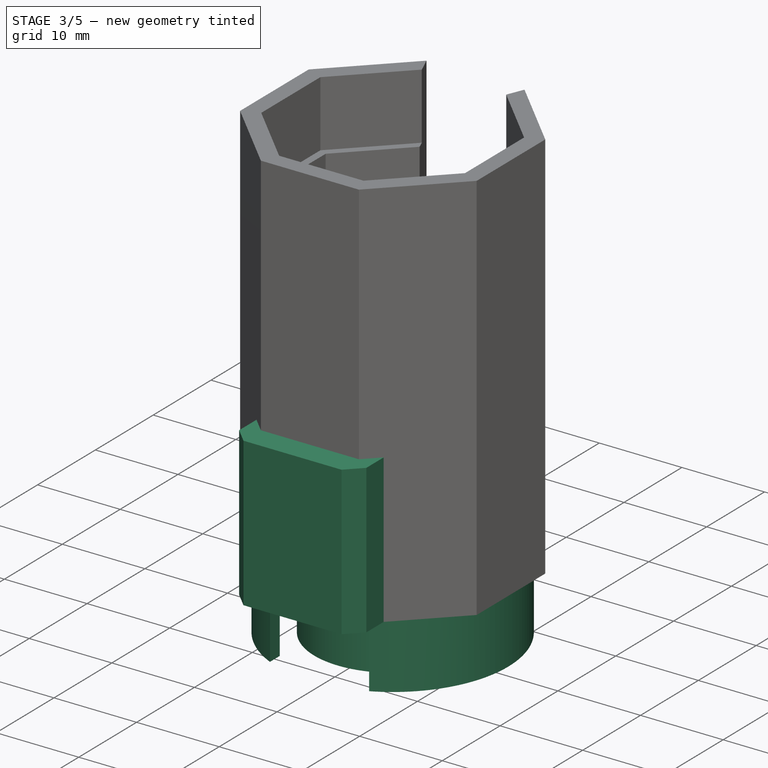
[diagram: stage 3 of 5 — iso view after this stage's code; geometry added in this stage tinted green]
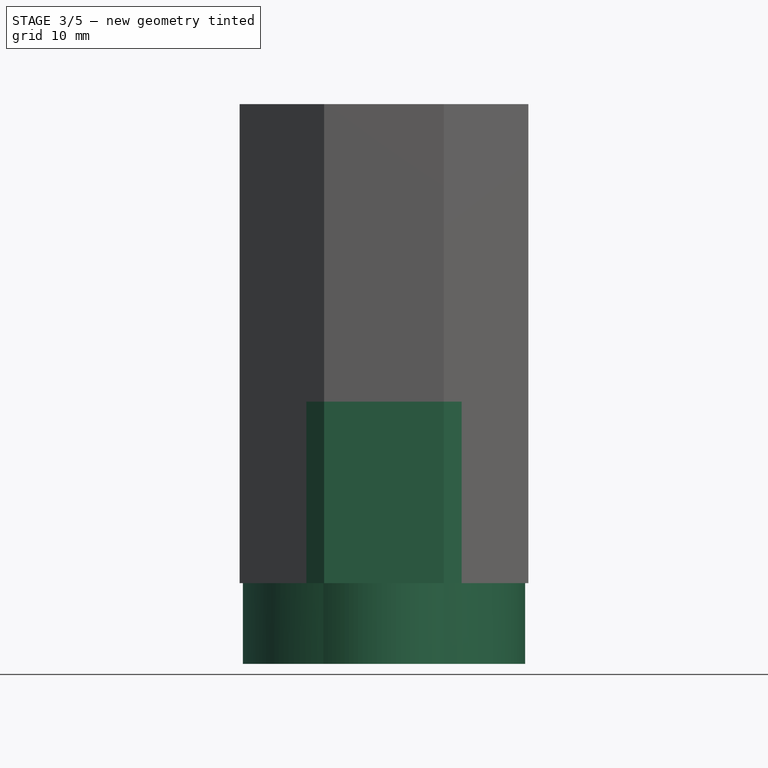
[diagram: stage 3 of 5 — front view after this stage's code; geometry added in this stage tinted green]
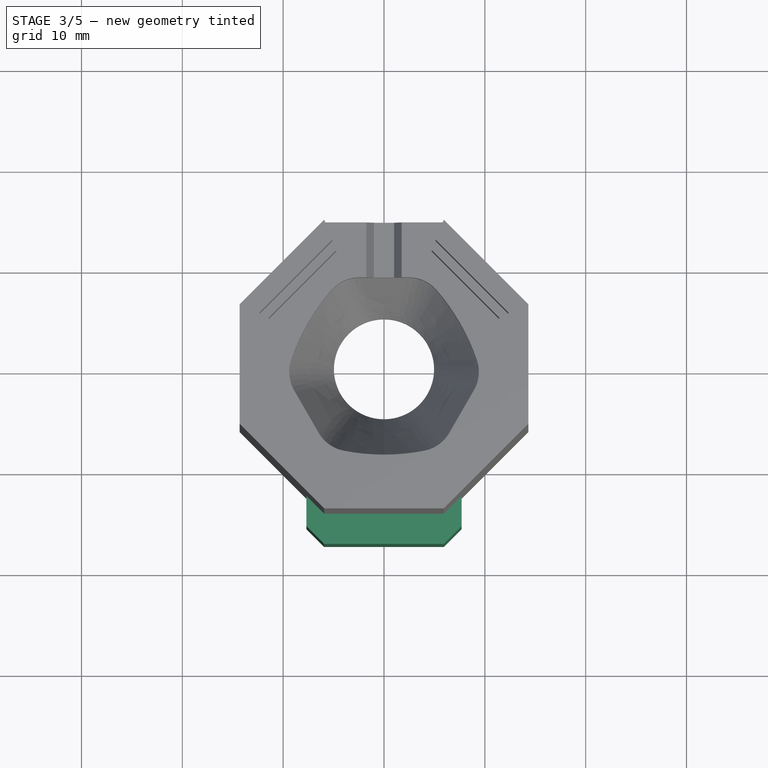
[diagram: stage 3 of 5 — top view after this stage's code; geometry added in this stage tinted green]
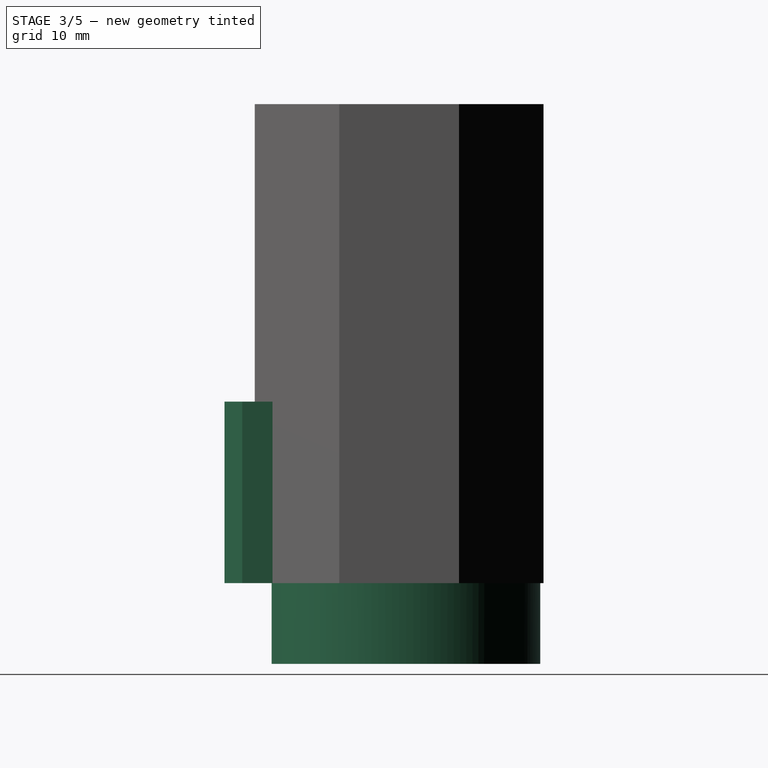
[diagram: stage 3 of 5 — right view after this stage's code; geometry added in this stage tinted green]
FEATURE [PartDesign::Body] Body
  AllowCompound = false
  Group = -> [Sketch,Pad,Sketch001,Pad001,Sketch002,Pad002,Draft,Sketch003,Pocket,Chamfer]
  Origin = -> Origin
  Tip = -> Chamfer
FEATURE [Sketcher::SketchObject] Sketch004
  ArcFitTolerance = 1e-06
  AttachmentSupport = -> [XY_Plane001]
  FullyConstrained = true
  MakeInternals = false
  MapMode = 5
  sketch-geometry (2):
    g0: Circle CenterX=0 CenterY=0 CenterZ=0 NormalX=0 NormalY=0 NormalZ=1 AngleXU=0 Radius=9.5
    g1: Circle CenterX=0 CenterY=0 CenterZ=0 NormalX=0 NormalY=0 NormalZ=1 AngleXU=0 Radius=7.5
  constraints (4):
    c: Diameter(g0) = 19
    c: Diameter(g1) = 15
    c: Coincident(g0,g1)
    c: Coincident(g0,g-1)
FEATURE [PartDesign::Pad] Pad003
  Direction = (0,0,1)
  Length = 8
  Length2 = 10
  Profile = -> Sketch004
  ReferenceAxis = -> Sketch004 [N_Axis]
  Refine = true
  Reversed = true
  Suppressed = false
  Type = 0
FEATURE [Sketcher::SketchObject] Sketch005
  ArcFitTolerance = 1e-06
  AttachmentSupport = -> [Pad003]
  ExternalGeometry = -> [Pad003]
  FullyConstrained = true
  MakeInternals = false
  MapMode = 5
  sketch-geometry (2):
    g0: Circle CenterX=0 CenterY=0 CenterZ=0 NormalX=0 NormalY=0 NormalZ=1 AngleXU=0 Radius=7.5
    g1: Circle CenterX=0 CenterY=0 CenterZ=0 NormalX=0 NormalY=0 NormalZ=1 AngleXU=0 Radius=12.5
  constraints (4):
    c: Coincident(g0,g-1)
    c: Coincident(g1,g0)
    c: Equal(g0,g-3)
    c: Diameter(g1) = 25
FEATURE [PartDesign::Pad] Pad004
  BaseFeature = -> Pad003
  Direction = (0,0,1)
  Length = 2
  Length2 = 10
  Profile = -> Sketch005
  ReferenceAxis = -> Sketch005 [N_Axis]
  Refine = true
  Suppressed = false
  Type = 0
FEATURE [Sketcher::SketchObject] Sketch006
  ArcFitTolerance = 1e-06
  AttachmentSupport = -> [Pad004]
  ExternalGeometry = -> [Pad004]
  FullyConstrained = true
  MakeInternals = false
  MapMode = 5
  Placement = pos=(0,0,2) rot=(0,0,1;0rad)
  sketch-geometry (2):
    g0: Circle CenterX=0 CenterY=0 CenterZ=0 NormalX=0 NormalY=0 NormalZ=1 AngleXU=0 Radius=12.5
    g1: Circle CenterX=0 CenterY=0 CenterZ=0 NormalX=0 NormalY=0 NormalZ=1 AngleXU=0 Radius=14
  constraints (4):
    c: Coincident(g0,g-1)
    c: Coincident(g1,g0)
    c: Diameter(g1) = 28
    c: Diameter(g0) = 25
FEATURE [PartDesign::Pad] Pad005
  BaseFeature = -> Pad004
  Direction = (0,0,1)
  Length = 10
  Length2 = 10
  Profile = -> Sketch006
  ReferenceAxis = -> Sketch006 [N_Axis]
  Refine = true
  Reversed = true
  Suppressed = false
  Type = 0
FEATURE [Sketcher::SketchObject] Sketch007
  ArcFitTolerance = 1e-06
  AttachmentSupport = -> [Pad005]
  ExternalGeometry = -> [Pad005]
  FullyConstrained = true
  MakeInternals = false
  MapMode = 5
  Placement = pos=(0,0,2) rot=(0,0,1;0rad)
  sketch-geometry (2):
    g0: Circle CenterX=0 CenterY=0 CenterZ=0 NormalX=0 NormalY=0 NormalZ=1 AngleXU=0 Radius=5
    g1: Circle CenterX=0 CenterY=0 CenterZ=0 NormalX=0 NormalY=0 NormalZ=1 AngleXU=0 Radius=14
  constraints (4):
    c: Coincident(g1,g-1)
    c: Coincident(g0,g-3)
    c: Equal(g1,g-3)
    c: Diameter(g0) = 10
FEATURE [Sketcher::SketchObject] Sketch011
  ArcFitTolerance = 1e-06
  AttachmentSupport = -> [Pad005]
  ExternalGeometry = -> [Pad005]
  FullyConstrained = true
  MakeInternals = false
  MapMode = 5
  Placement = pos=(0,0,-8) rot=(1,0,0;3.14159rad)
  sketch-geometry (4):
    g0: LineSegment StartX=-6 StartY=10.9659 StartZ=0 EndX=-6 EndY=14 EndZ=0
    g1: LineSegment StartX=-6 StartY=14 StartZ=0 EndX=6 EndY=14 EndZ=0
    g2: LineSegment StartX=6 StartY=14 StartZ=0 EndX=6 EndY=10.9659 EndZ=0
    g3: LineSegment StartX=6 StartY=10.9659 StartZ=0 EndX=-6 EndY=10.9659 EndZ=0
  constraints (11):
    c: Coincident(g0,g1)
    c: Coincident(g1,g2)
    c: Coincident(g2,g3)
    c: Coincident(g3,g0)
    c: Vertical(g0)
    c: Vertical(g2)
    c: Horizontal(g1)
    c: Distance(g0,g2) = 12
    c: Symmetric(g0,g2,g-2)
    c: Tangent(g1,g-4)
    c: PointOnObject(g0,g-3)
FEATURE [PartDesign::Pocket] Pocket001
  BaseFeature = -> Pad005
  Direction = (0,0,1)
  Length = 0
  Length2 = 5
  Profile = -> Sketch011
  ReferenceAxis = -> Sketch011 [N_Axis]
  Refine = true
  Suppressed = false
  Type = 3
  UpToFace = -> Pad005 [Face2]
FEATURE [Sketcher::SketchObject] Sketch028
  ArcFitTolerance = 1e-06
  AttachmentSupport = -> [Pocket007]
  ExternalGeometry = -> [Pocket007]
  FullyConstrained = true
  MakeInternals = false
  MapMode = 5
  Placement = pos=(0,0,0) rot=(1,0,0;3.14159rad)
  sketch-geometry (10):
    g0: LineSegment StartX=-5.93159 StartY=15.3201 StartZ=0 EndX=5.93159 EndY=15.3201 EndZ=0
    g1: LineSegment StartX=5.93159 StartY=14.3201 StartZ=0 EndX=7.69936 EndY=12.5524 EndZ=0
    g2: LineSegment StartX=7.69936 StartY=12.5524 StartZ=0 EndX=7.69936 EndY=15.5524 EndZ=0
    g3: LineSegment StartX=7.69936 StartY=15.5524 StartZ=0 EndX=5.93159 EndY=17.3201 EndZ=0
    g4: LineSegment StartX=5.93159 StartY=17.3201 StartZ=0 EndX=-5.93159 EndY=17.3201 EndZ=0
    g5: LineSegment StartX=-5.93159 StartY=17.3201 StartZ=0 EndX=-7.69936 EndY=15.5524 EndZ=0
    g6: LineSegment StartX=-7.69936 StartY=15.5524 StartZ=0 EndX=-7.69936 EndY=12.5524 EndZ=0
    g7: LineSegment StartX=-7.69936 StartY=12.5524 StartZ=0 EndX=-5.93159 EndY=14.3201 EndZ=0
    g8: LineSegment StartX=-5.93159 StartY=14.3201 StartZ=0 EndX=-5.93159 EndY=15.3201 EndZ=0
    g9: LineSegment StartX=5.93159 StartY=14.3201 StartZ=0 EndX=5.93159 EndY=15.3201 EndZ=0
  constraints (27):
    c: PointOnObject(g1,g-4)
    c: Coincident(g1,g2)
    c: Coincident(g2,g3)
    c: Coincident(g3,g4)
    c: Coincident(g4,g5)
    c: Coincident(g5,g6)
    c: PointOnObject(g6,g-3)
    c: Coincident(g6,g7)
    c: Parallel(g1,g3)
    c: Parallel(g5,g7)
    c: Equal(g1,g7)
    c: Vertical(g2)
    c: Vertical(g6)
    c: Symmetric(g4,g3,g-2)
    c: Horizontal(g0)
    c: Coincident(g1,g-4)
    c: Coincident(g7,g-3)
    c: Coincident(g8,g7)
    c: Coincident(g8,g0)
    c: Coincident(g9,g1)
    c: Coincident(g9,g0)
    c: Vertical(g9)
    c: Vertical(g8)
    c: Equal(g4,g0)
    c: Distance(g8,g8) = 1
    c: DistanceY(g0,g4) = 2
    c: Distance(g7,g7) = 2.5
FEATURE [PartDesign::Pad] Pad017
  BaseFeature = -> Pocket007
  Direction = (0,0,-1)
  Length = 18
  Length2 = 10
  Profile = -> Sketch028
  ReferenceAxis = -> Sketch028 [N_Axis]
  Refine = true
  Reversed = true
  Suppressed = false
  Type = 0
FEATURE [Sketcher::SketchObject] Sketch029
  ArcFitTolerance = 1e-06
  AttachmentSupport = -> [Pad017]
  ExternalGeometry = -> [Pad017]
  FullyConstrained = true
  MakeInternals = false
  MapMode = 5
  Placement = pos=(0,0,18) rot=(0,0,1;0rad)
  sketch-geometry (6):
    g0: LineSegment StartX=-7.69936 StartY=-12.5524 StartZ=0 EndX=7.69936 EndY=-12.5524 EndZ=0
    g1: LineSegment StartX=7.69936 StartY=-12.5524 StartZ=0 EndX=7.69936 EndY=-15.5524 EndZ=0
    g2: LineSegment StartX=7.69936 StartY=-15.5524 StartZ=0 EndX=5.93159 EndY=-17.3201 EndZ=0
    g3: LineSegment StartX=5.93159 StartY=-17.3201 StartZ=0 EndX=-5.93159 EndY=-17.3201 EndZ=0
    g4: LineSegment StartX=-5.93159 StartY=-17.3201 StartZ=0 EndX=-7.69936 EndY=-15.5524 EndZ=0
    g5: LineSegment StartX=-7.69936 StartY=-15.5524 StartZ=0 EndX=-7.69936 EndY=-12.5524 EndZ=0
  constraints (12):
    c: Coincident(g-3,g0)
    c: Coincident(g0,g-4)
    c: Coincident(g0,g1)
    c: Coincident(g1,g-4)
    c: Coincident(g1,g2)
    c: Coincident(g2,g-5)
    c: Coincident(g2,g3)
    c: Coincident(g3,g-5)
    c: Coincident(g3,g4)
    c: Coincident(g4,g-3)
    c: Coincident(g4,g5)
    c: Coincident(g5,g0)
FEATURE [PartDesign::Pad] Pad018
  BaseFeature = -> Pad017
  Direction = (0,0,1)
  Length = 2
  Length2 = 10
  Profile = -> Sketch029
  ReferenceAxis = -> Sketch029 [N_Axis]
  Refine = true
  Reversed = true
  Suppressed = false
  Type = 0
FEATURE [PartDesign::Body] Body002
  AllowCompound = false
  Group = -> [Sketch017,Pad010,Sketch018,Pad011,Sketch019,Pad012,Sketch020,Pocket004,DatumPlane001,DatumPlane002,DatumPlane003,DatumPlane004,Sketch021,Pad013,Sketch022,SubtractiveLoft001,Fillet001,Pad014,Sketch023,Pad015,Sketch024,Pad016,Sketch025,Pocket005,Sketch026,Pocket006,Sketch027,Pocket007,Sketch028,Pad017,Sketch029,Pad018]
  Origin = -> Origin002
  Tip = -> Pad018
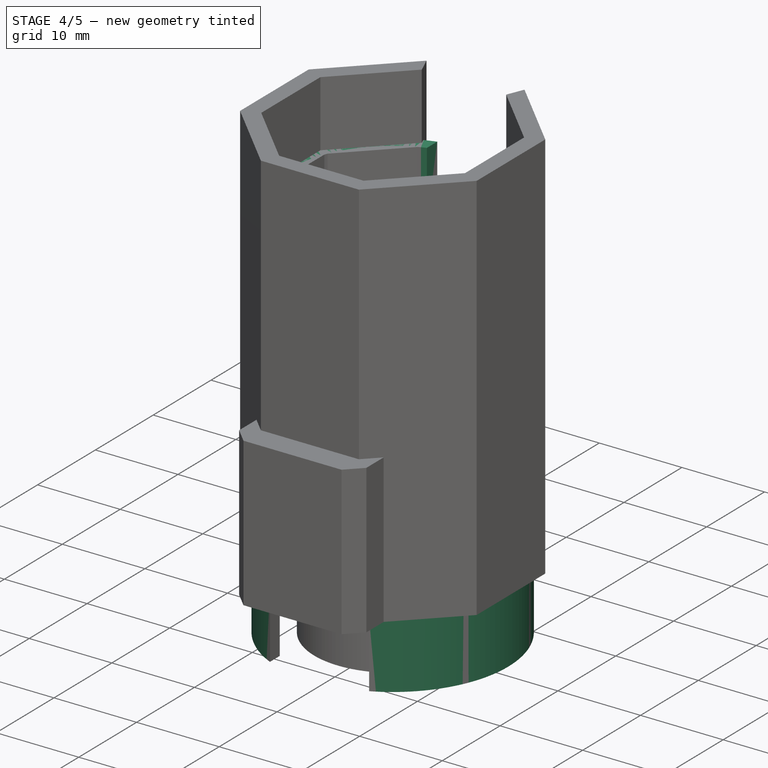
[diagram: stage 4 of 5 — iso view after this stage's code; geometry added in this stage tinted green]
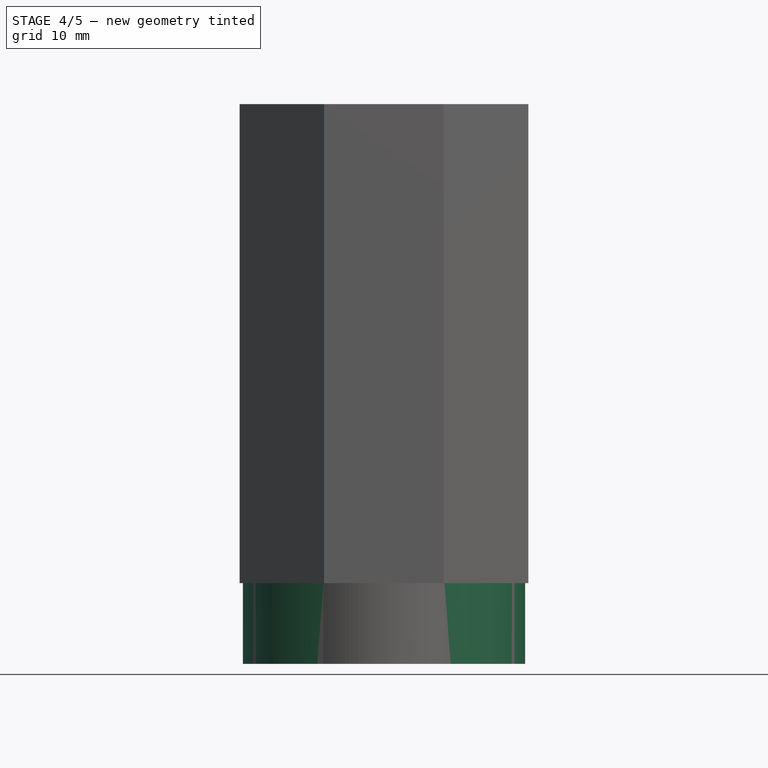
[diagram: stage 4 of 5 — front view after this stage's code; geometry added in this stage tinted green]
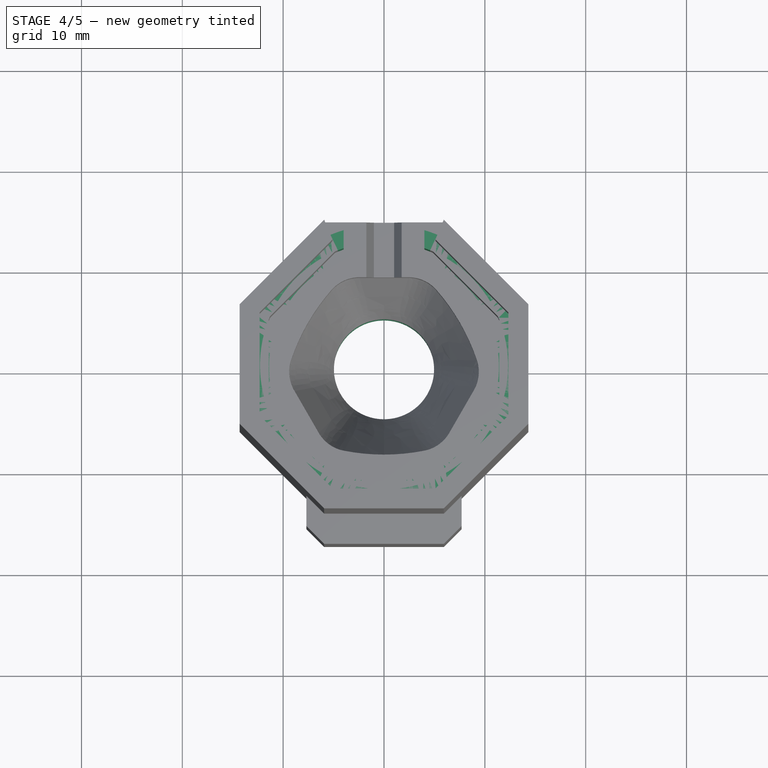
[diagram: stage 4 of 5 — top view after this stage's code; geometry added in this stage tinted green]
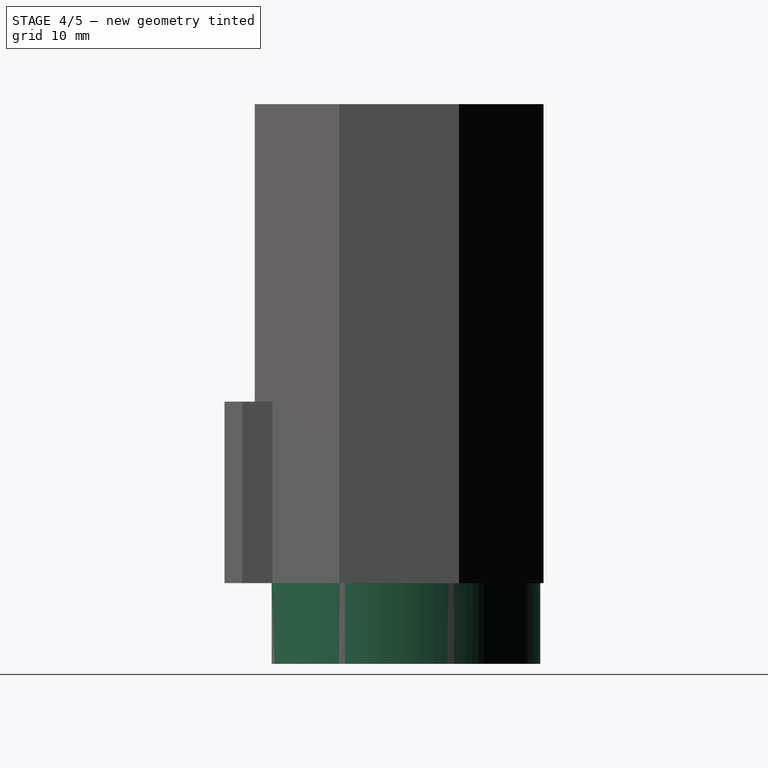
[diagram: stage 4 of 5 — right view after this stage's code; geometry added in this stage tinted green]
FEATURE [PartDesign::Pad] Pad006
  BaseFeature = -> Pocket001
  Direction = (0,0,1)
  Length = 18
  Length2 = 10
  Profile = -> Sketch007
  ReferenceAxis = -> Sketch007 [N_Axis]
  Refine = true
  Suppressed = false
  Type = 0
FEATURE [Sketcher::SketchObject] Sketch012
  ArcFitTolerance = 1e-06
  AttachmentSupport = -> [Pad006]
  FullyConstrained = true
  MakeInternals = false
  MapMode = 5
  Placement = pos=(0,0,20) rot=(0,0,1;0rad)
  sketch-geometry (16):
    g0: LineSegment [constr] StartX=0 StartY=11.8934 StartZ=0 EndX=-10.3 EndY=-5.94671 EndZ=0
    g1: LineSegment [constr] StartX=-10.3 StartY=-5.94671 StartZ=0 EndX=10.3 EndY=-5.94671 EndZ=0
    g2: LineSegment [constr] StartX=10.3 StartY=-5.94671 StartZ=0 EndX=0 EndY=11.8934 EndZ=0
    g3: Circle [constr] CenterX=0 CenterY=0 CenterZ=0 NormalX=0 NormalY=0 NormalZ=1 AngleXU=0 Radius=11.8934
    g4: ArcOfCircle [constr] CenterX=10.3 CenterY=-5.94671 CenterZ=0 NormalX=0 NormalY=0 NormalZ=1 AngleXU=0 Radius=20.6 StartAngle=2.0944 EndAngle=3.14159
    g5: LineSegment [constr] StartX=10.3 StartY=-5.94671 StartZ=0 EndX=-5.15 EndY=2.97335 EndZ=0
    g6: LineSegment [constr] StartX=-5.15 StartY=2.97335 StartZ=0 EndX=-7.54012 EndY=4.35329 EndZ=0
    g7: ArcOfCircle [constr] CenterX=-10.3 CenterY=-5.94671 CenterZ=0 NormalX=0 NormalY=0 NormalZ=1 AngleXU=0 Radius=20.6 StartAngle=0 EndAngle=1.0472
    g8: ArcOfCircle [constr] CenterX=-1.5e-15 CenterY=11.8934 CenterZ=0 NormalX=0 NormalY=0 NormalZ=1 AngleXU=0 Radius=20.6 StartAngle=4.18879 EndAngle=5.23599
    g9: LineSegment StartX=-4 StartY=8.88131 StartZ=0 EndX=4 EndY=8.88131 EndZ=0
    g10: LineSegment StartX=-9.69144 StartY=-0.976552 StartZ=0 EndX=-5.69144 EndY=-7.90475 EndZ=0
    g11: LineSegment StartX=5.69144 StartY=-7.90475 StartZ=0 EndX=9.69144 EndY=-0.976552 EndZ=0
    g12: LineSegment [constr] StartX=-10.3 StartY=-5.94671 StartZ=0 EndX=7.54012 EndY=4.35329 EndZ=0
    g13: ArcOfCircle CenterX=10.3 CenterY=-5.94671 CenterZ=0 NormalX=0 NormalY=0 NormalZ=1 AngleXU=0 Radius=20.6 StartAngle=2.33807 EndAngle=2.89792
    g14: ArcOfCircle CenterX=-10.3 CenterY=-5.94671 CenterZ=0 NormalX=0 NormalY=0 NormalZ=1 AngleXU=0 Radius=20.6 StartAngle=0.243674 EndAngle=0.803524
    g15: ArcOfCircle CenterX=6.1e-15 CenterY=11.8934 CenterZ=0 NormalX=0 NormalY=0 NormalZ=1 AngleXU=0 Radius=20.6 StartAngle=4.43246 EndAngle=4.99231
  constraints (48):
    c: Coincident(g0,g1)
    c: Coincident(g1,g2)
    c: Coincident(g2,g0)
    c: Equal(g0,g1)
    c: Equal(g0,g2)
    c: PointOnObject(g0,g3)
    c: PointOnObject(g1,g3)
    c: PointOnObject(g2,g3)
    c: Coincident(g3,g-1)
    c: PointOnObject(g2,g-2)
    c: DistanceX(g1,g1) = 20.6
    c: Coincident(g4,g0)
    c: Coincident(g4,g0)
    c: Coincident(g5,g1)
    c: Symmetric(g0,g0,g5)
    c: Coincident(g6,g5)
    c: PointOnObject(g6,g4)
    c: Perpendicular(g0,g6)
    c: Coincident(g7,g0)
    c: Coincident(g7,g1)
    c: Equal(g7,g4)
    c: Coincident(g8,g1)
    c: Coincident(g8,g0)
    c: Equal(g4,g8)
    c: PointOnObject(g4,g3)
    c: PointOnObject(g9,g4)
    c: PointOnObject(g9,g7)
    c: Horizontal(g9)
    c: DistanceX(g9,g9) = 8
    c: PointOnObject(g10,g4)
    c: PointOnObject(g10,g8)
    c: PointOnObject(g11,g8)
    c: PointOnObject(g11,g7)
    c: Coincident(g12,g7)
    c: PointOnObject(g12,g7)
    c: Symmetric(g10,g10,g12)
    c: Perpendicular(g5,g11)
    c: Coincident(g13,g9)
    c: Coincident(g13,g10)
    c: Coincident(g14,g9)
    c: Coincident(g14,g11)
    c: Equal(g13,g4)
    c: Equal(g14,g7)
    c: Coincident(g15,g11)
    c: Coincident(g15,g10)
    c: Equal(g15,g8)
    c: Distance(g10,g10) = 8
    c: Distance(g11,g11) = 8
FEATURE [PartDesign::Plane] DatumPlane
  AttachmentOffset = pos=(0,0,-10) rot=(0,0,1;0rad)
  AttachmentSupport = -> [Sketch012]
  Length = 60
  MapMode = 2
  Placement = pos=(0,0,10) rot=(0,0,1;0rad)
  ResizeMode = 0
  Width = 60
FEATURE [Sketcher::SketchObject] Sketch013
  ArcFitTolerance = 1e-06
  AttachmentSupport = -> [DatumPlane]
  ExternalGeometry = -> [Pad006]
  FullyConstrained = true
  MakeInternals = false
  MapMode = 5
  Placement = pos=(0,0,10) rot=(0,0,1;0rad)
  sketch-geometry (1):
    g0: Circle CenterX=0 CenterY=0 CenterZ=0 NormalX=0 NormalY=0 NormalZ=1 AngleXU=0 Radius=5
  constraints (2):
    c: Coincident(g0,g-1)
    c: Equal(g0,g-3)
FEATURE [PartDesign::SubtractiveLoft] SubtractiveLoft
  BaseFeature = -> Pad006
  Closed = false
  Profile = -> Sketch012
  Refine = true
  Ruled = false
  Sections = -> [Sketch013]
  Suppressed = false
FEATURE [PartDesign::Fillet] Fillet
  Base = -> SubtractiveLoft [Edge38,Edge36,Edge34,Edge32,Edge42,Edge40]
  BaseFeature = -> SubtractiveLoft
  Radius = 4
  Refine = true
  SupportTransform = false
  Suppressed = false
  UseAllEdges = false
FEATURE [Sketcher::SketchObject] Sketch014
  ArcFitTolerance = 1e-06
  AttachmentSupport = -> [Fillet]
  ExternalGeometry = -> [Fillet]
  FullyConstrained = true
  MakeInternals = false
  MapMode = 5
  Placement = pos=(0,0,20) rot=(0,0,1;0rad)
  sketch-geometry (13):
    g0: Circle CenterX=0 CenterY=0 CenterZ=0 NormalX=0 NormalY=0 NormalZ=1 AngleXU=0 Radius=14
    g1: ArcOfCircle CenterX=-10.3 CenterY=-5.94671 CenterZ=0 NormalX=0 NormalY=0 NormalZ=1 AngleXU=0 Radius=20.6 StartAngle=0.328794 EndAngle=0.718711
    g2: ArcOfCircle CenterX=10.3 CenterY=-5.94671 CenterZ=0 NormalX=0 NormalY=0 NormalZ=1 AngleXU=0 Radius=20.6 StartAngle=2.42295 EndAngle=2.81304
    g3: ArcOfCircle CenterX=-1.27578e-08 CenterY=11.8934 CenterZ=0 NormalX=0 NormalY=0 NormalZ=1 AngleXU=0 Radius=20.6 StartAngle=4.51735 EndAngle=4.90743
    g4: LineSegment StartX=-2.41496 StartY=8.88131 StartZ=0 EndX=2.41497 EndY=8.88131 EndZ=0
    g5: LineSegment StartX=8.90254 StartY=-2.34297 StartZ=0 EndX=6.48471 EndY=-6.53077 EndZ=0
    g6: LineSegment StartX=-8.89892 StartY=-2.34924 StartZ=0 EndX=-6.48396 EndY=-6.53207 EndZ=0
    g7: ArcOfCircle CenterX=2.41497 CenterY=5.17204 CenterZ=0 NormalX=0 NormalY=0 NormalZ=1 AngleXU=0 Radius=3.70927 StartAngle=0.719558 EndAngle=1.5708
    g8: ArcOfCircle CenterX=-2.41694 CenterY=5.17639 CenterZ=0 NormalX=0 NormalY=0 NormalZ=1 AngleXU=0 Radius=3.70492 StartAngle=1.57026 EndAngle=2.42295
    g9: ArcOfCircle CenterX=-3.27441 CenterY=-4.68132 CenterZ=0 NormalX=0 NormalY=0 NormalZ=1 AngleXU=0 Radius=3.70492 StartAngle=3.66466 EndAngle=4.51735
    g10: ArcOfCircle CenterX=3.26951 CenterY=-4.67448 CenterZ=0 NormalX=0 NormalY=0 NormalZ=1 AngleXU=0 Radius=3.71259 StartAngle=4.90837 EndAngle=5.75959
    g11: ArcOfCircle CenterX=5.70398 CenterY=-0.496283 CenterZ=0 NormalX=0 NormalY=0 NormalZ=1 AngleXU=0 Radius=3.69337 StartAngle=5.75959 EndAngle=6.61448
    g12: ArcOfCircle CenterX=-5.68658 CenterY=-0.494597 CenterZ=0 NormalX=0 NormalY=0 NormalZ=1 AngleXU=0 Radius=3.70928 StartAngle=2.81357 EndAngle=3.66519
  constraints (26):
    c: Coincident(g0,g-1)
    c: Equal(g0,g-3)
    c: Tangent(g1,g-6) = -1.5708
    c: Coincident(g1,g-7)
    c: Coincident(g2,g-15)
    c: Tangent(g2,g-14) = -1.5708
    c: Coincident(g3,g-11)
    c: Tangent(g3,g-10) = -1.5708
    c: Coincident(g4,g-15)
    c: Coincident(g4,g-5)
    c: Coincident(g5,g-8)
    c: Coincident(g5,g-9)
    c: Coincident(g6,g-13)
    c: Coincident(g6,g-12)
    c: Coincident(g7,g1)
    c: Tangent(g7,g4) = 1.5708
    c: Tangent(g8,g2) = -1.5708
    c: Coincident(g8,g4)
    c: Coincident(g9,g6)
    c: Tangent(g9,g3) = -1.5708
    c: Coincident(g10,g3)
    c: Tangent(g10,g5) = 1.5708
    c: Coincident(g11,g1)
    c: Tangent(g11,g5) = 1.5708
    c: Coincident(g12,g2)
    c: Tangent(g12,g6) = -1.5708
FEATURE [PartDesign::Pad] Pad007
  BaseFeature = -> Fillet
  Direction = (0,0,1)
  Length = 3.5
  Length2 = 10
  Profile = -> Sketch014
  Refine = true
  Suppressed = false
  Type = 0
FEATURE [Sketcher::SketchObject] Sketch015
  ArcFitTolerance = 1e-06
  AttachmentSupport = -> [Pad007]
  FullyConstrained = true
  MakeInternals = false
  MapMode = 5
  Placement = pos=(0,0,23.5) rot=(0,0,1;0rad)
  sketch-geometry (4):
    g0: ArcOfCircle CenterX=0 CenterY=0 CenterZ=0 NormalX=0 NormalY=0 NormalZ=1 AngleXU=0 Radius=14 StartAngle=1.86055 EndAngle=7.56423
    g1: ArcOfCircle CenterX=0 CenterY=0 CenterZ=0 NormalX=0 NormalY=0 NormalZ=1 AngleXU=0 Radius=11.4 StartAngle=1.9293 EndAngle=7.49547
    g2: LineSegment StartX=-4 StartY=13.4164 StartZ=0 EndX=-4 EndY=10.6752 EndZ=0
    g3: LineSegment StartX=4 StartY=13.4164 StartZ=0 EndX=4 EndY=10.6752 EndZ=0
  constraints (11):
    c: Coincident(g0,g-1)
    c: Coincident(g1,g0)
    c: Coincident(g2,g-4)
    c: Vertical(g2)
    c: Coincident(g3,g-5)
    c: PointOnObject(g3,g-5)
    c: Coincident(g1,g3)
    c: Coincident(g1,g2)
    c: Coincident(g0,g3)
    c: PointOnObject(g0,g2)
    c: Radius(g1) = 11.4
FEATURE [PartDesign::Pad] Pad008
  BaseFeature = -> Pad007
  Direction = (0,0,1)
  Length = 8
  Length2 = 10
  Profile = -> Sketch015
  ReferenceAxis = -> Sketch015 [N_Axis]
  Refine = true
  Suppressed = false
  Type = 0
FEATURE [Sketcher::SketchObject] Sketch016
  ArcFitTolerance = 1e-06
  AttachmentSupport = -> [Pad008]
  FullyConstrained = true
  MakeInternals = false
  MapMode = 5
  Placement = pos=(0,0,31.5) rot=(0,0,1;0rad)
  sketch-geometry (4):
    g0: ArcOfCircle CenterX=0 CenterY=0 CenterZ=0 NormalX=0 NormalY=0 NormalZ=1 AngleXU=0 Radius=14 StartAngle=1.86055 EndAngle=7.56423
    g1: ArcOfCircle CenterX=0 CenterY=0 CenterZ=0 NormalX=0 NormalY=0 NormalZ=1 AngleXU=0 Radius=12.3 StartAngle=1.90202 EndAngle=7.52275
    g2: LineSegment StartX=-4 StartY=13.4164 StartZ=0 EndX=-4 EndY=11.6314 EndZ=0
    g3: LineSegment StartX=4 StartY=13.4164 StartZ=0 EndX=4 EndY=11.6314 EndZ=0
  constraints (11):
    c: Coincident(g0,g-1)
    c: Coincident(g1,g0)
    c: Diameter(g1) = 24.6
    c: Coincident(g2,g-4)
    c: PointOnObject(g2,g-4)
    c: Coincident(g3,g-5)
    c: PointOnObject(g3,g-5)
    c: Coincident(g0,g-3)
    c: Coincident(g1,g3)
    c: Coincident(g1,g2)
    c: PointOnObject(g0,g2)
FEATURE [PartDesign::Pad] Pad009
  BaseFeature = -> Pad008
  Direction = (0,0,1)
  Length = 8
  Length2 = 10
  Profile = -> Sketch016
  ReferenceAxis = -> Sketch016 [N_Axis]
  Refine = true
  Suppressed = false
  Type = 0
FEATURE [PartDesign::Pocket] Pocket003
  BaseFeature = -> Pad009
  Direction = (0,0,1)
  Length = 6
  Length2 = 5
  Profile = -> Pad009 [Face9]
  Refine = true
  Suppressed = false
  Type = 0
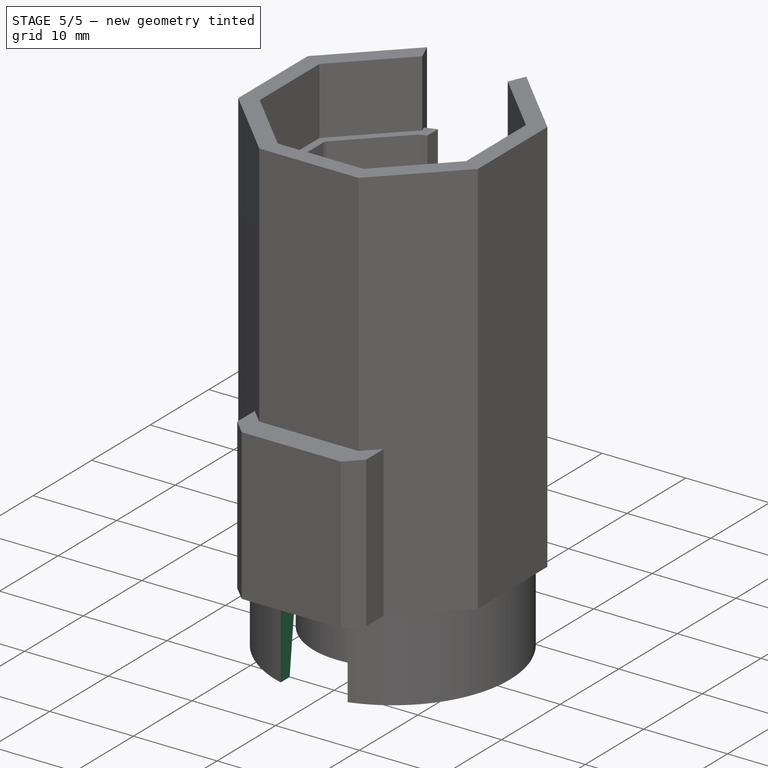
[diagram: stage 5 of 5 — iso view after this stage's code; geometry added in this stage tinted green]
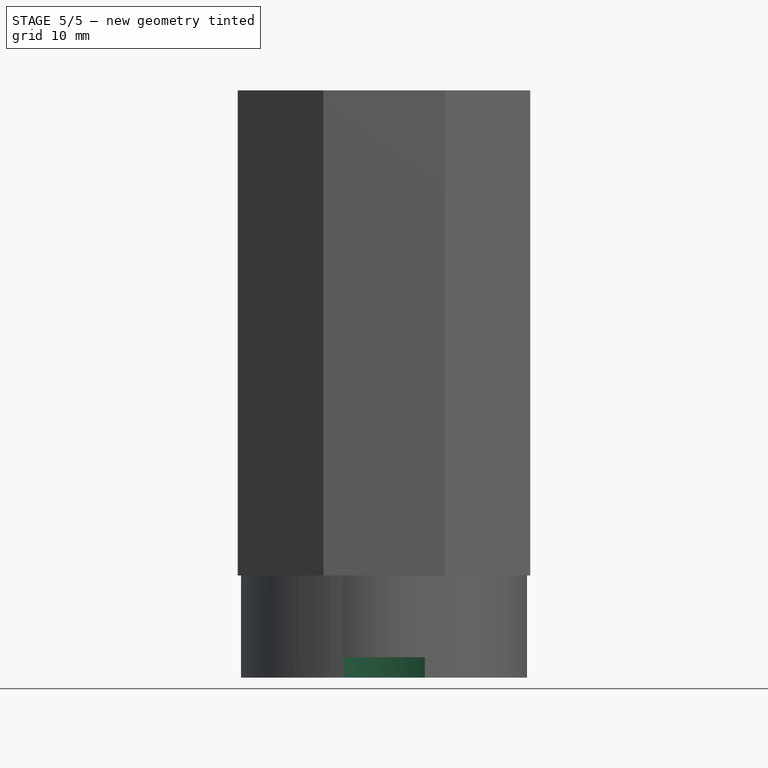
[diagram: stage 5 of 5 — front view after this stage's code; geometry added in this stage tinted green]
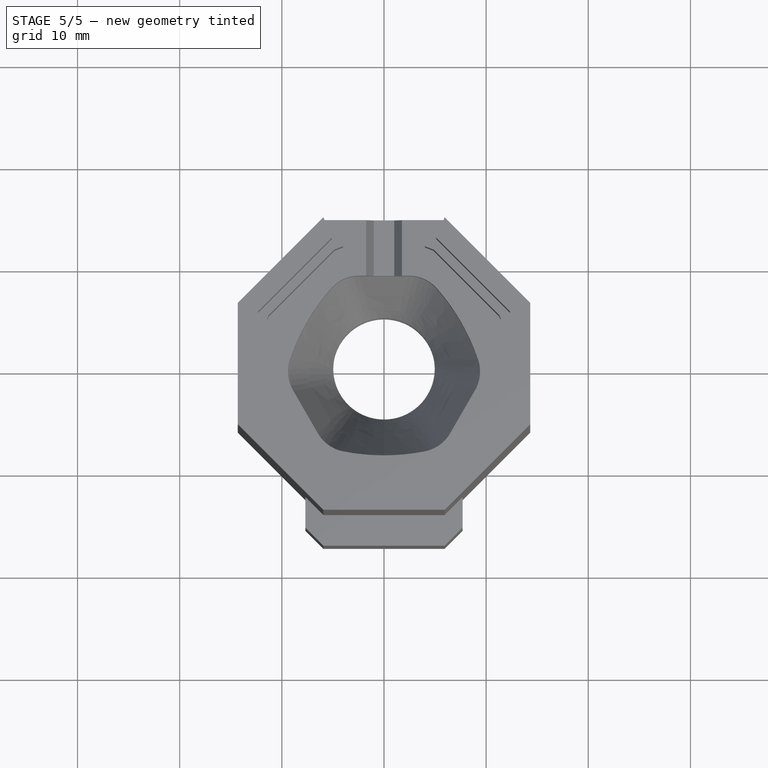
[diagram: stage 5 of 5 — top view after this stage's code; geometry added in this stage tinted green]
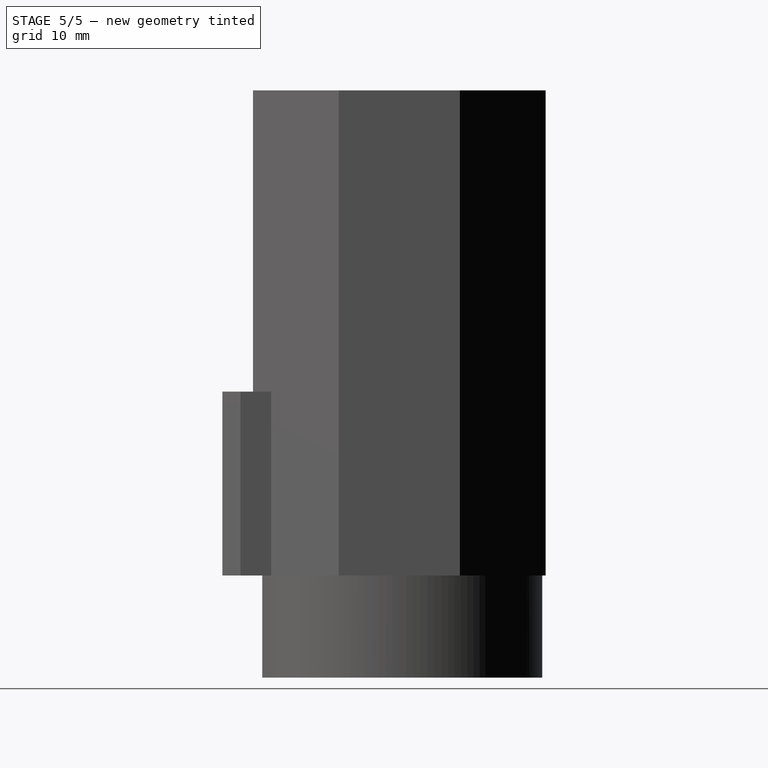
[diagram: stage 5 of 5 — right view after this stage's code; geometry added in this stage tinted green]
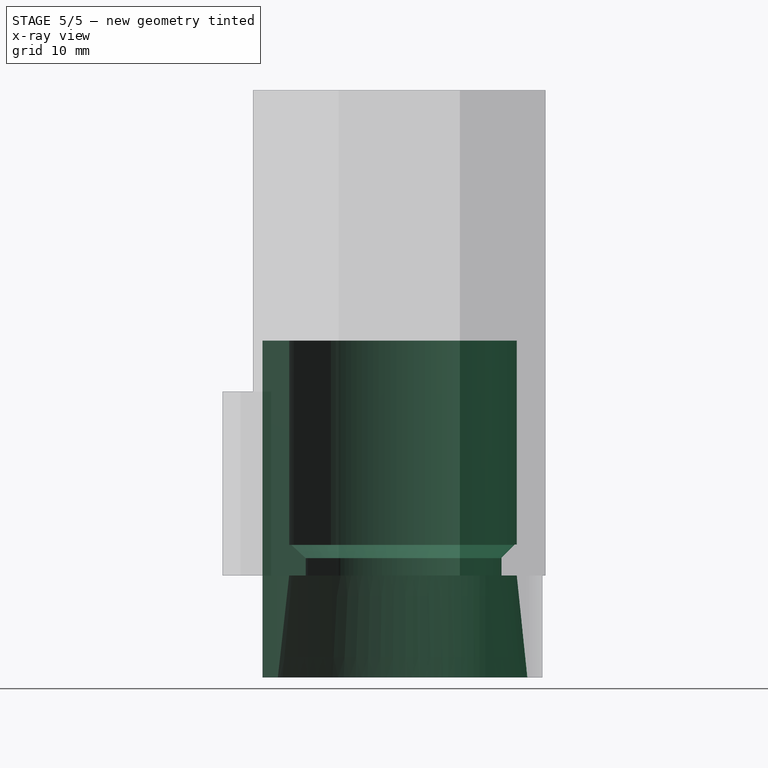
[diagram: stage 5 of 5 — x-ray composite at the right view; earlier geometry ghosted, this stage's added geometry solid]
FEATURE [Sketcher::SketchObject] Sketch
  ArcFitTolerance = 1e-06
  AttachmentSupport = -> [XY_Plane]
  FullyConstrained = true
  MakeInternals = false
  MapMode = 5
  sketch-geometry (2):
    g0: Circle CenterX=0 CenterY=0 CenterZ=0 NormalX=0 NormalY=0 NormalZ=1 AngleXU=0 Radius=10
    g1: Circle CenterX=0 CenterY=0 CenterZ=0 NormalX=0 NormalY=0 NormalZ=1 AngleXU=0 Radius=14
  constraints (4):
    c: Coincident(g0,g-1)
    c: Coincident(g1,g0)
    c: Diameter(g0) = 20
    c: Diameter(g1) = 28
FEATURE [PartDesign::Pad] Pad
  Direction = (0,0,1)
  Length = 3
  Length2 = 10
  Profile = -> Sketch
  ReferenceAxis = -> Sketch [N_Axis]
  Refine = true
  Suppressed = false
  Type = 0
FEATURE [Sketcher::SketchObject] Sketch001
  ArcFitTolerance = 1e-06
  AttachmentSupport = -> [Pad]
  ExternalGeometry = -> [Pad]
  FullyConstrained = true
  MakeInternals = false
  MapMode = 5
  Placement = pos=(0,0,3) rot=(0,0,1;0rad)
  sketch-geometry (2):
    g0: Circle CenterX=0 CenterY=0 CenterZ=0 NormalX=0 NormalY=0 NormalZ=1 AngleXU=0 Radius=14
    g1: Circle CenterX=0 CenterY=0 CenterZ=0 NormalX=0 NormalY=0 NormalZ=1 AngleXU=0 Radius=11.5
  constraints (4):
    c: Coincident(g0,g-1)
    c: Coincident(g1,g0)
    c: Equal(g0,g-3)
    c: Diameter(g1) = 23
FEATURE [PartDesign::Pad] Pad001
  BaseFeature = -> Pad
  Direction = (0,0,1)
  Length = 20
  Length2 = 10
  Profile = -> Sketch001
  ReferenceAxis = -> Sketch001 [N_Axis]
  Refine = true
  Suppressed = false
  Type = 0
FEATURE [Sketcher::SketchObject] Sketch002
  ArcFitTolerance = 1e-06
  AttachmentSupport = -> [Pad001]
  ExternalGeometry = -> [Pad001]
  FullyConstrained = true
  MakeInternals = false
  MapMode = 5
  Placement = pos=(0,0,0) rot=(1,0,0;3.14159rad)
  sketch-geometry (2):
    g0: Circle CenterX=0 CenterY=0 CenterZ=0 NormalX=0 NormalY=0 NormalZ=1 AngleXU=0 Radius=11.5
    g1: Circle CenterX=0 CenterY=0 CenterZ=0 NormalX=0 NormalY=0 NormalZ=1 AngleXU=0 Radius=14
  constraints (4):
    c: Coincident(g0,g-1)
    c: Coincident(g1,g0)
    c: Equal(g1,g-4)
    c: Diameter(g0) = 23
FEATURE [PartDesign::Pad] Pad002
  BaseFeature = -> Pad001
  Direction = (0,0,-1)
  Length = 10
  Length2 = 10
  Profile = -> Sketch002
  ReferenceAxis = -> Sketch002 [N_Axis]
  Refine = true
  Suppressed = false
  Type = 0
FEATURE [PartDesign::Draft] Draft
  Angle = 6
  Base = -> Pad002 [Face2]
  BaseFeature = -> Pad002
  NeutralPlane = -> Pad002 [Face1]
  Refine = true
  Reversed = true
  SupportTransform = false
  Suppressed = false
FEATURE [Sketcher::SketchObject] Sketch003
  ArcFitTolerance = 1e-06
  AttachmentSupport = -> [Draft]
  ExternalGeometry = -> [Draft]
  FullyConstrained = true
  MakeInternals = false
  MapMode = 5
  Placement = pos=(0,0,3) rot=(0,0,1;0rad)
  sketch-geometry (4):
    g0: LineSegment StartX=-4 StartY=-9.16515 StartZ=0 EndX=-4 EndY=-14 EndZ=0
    g1: LineSegment StartX=-4 StartY=-14 StartZ=0 EndX=4 EndY=-14 EndZ=0
    g2: LineSegment StartX=4 StartY=-14 StartZ=0 EndX=4 EndY=-9.16515 EndZ=0
    g3: LineSegment StartX=4 StartY=-9.16515 StartZ=0 EndX=-4 EndY=-9.16515 EndZ=0
  constraints (12):
    c: Coincident(g0,g1)
    c: Coincident(g1,g2)
    c: Coincident(g2,g3)
    c: Coincident(g3,g0)
    c: Vertical(g0)
    c: Vertical(g2)
    c: Horizontal(g1)
    c: Horizontal(g3)
    c: PointOnObject(g0,g-4)
    c: Tangent(g-3,g1)
    c: DistanceX(g3,g3) = 8
    c: PointOnObject(g2,g-4)
FEATURE [PartDesign::Pocket] Pocket
  BaseFeature = -> Draft
  Direction = (0,0,-1)
  Length = 15
  Length2 = 20
  Profile = -> Sketch003
  ReferenceAxis = -> Sketch003 [N_Axis]
  Refine = true
  Suppressed = false
  Type = 4
FEATURE [PartDesign::Chamfer] Chamfer
  Angle = 45
  Base = -> Pocket [Edge32]
  BaseFeature = -> Pocket
  ChamferType = 0
  FlipDirection = false
  Refine = true
  Size = 1.3
  Size2 = 1
  SupportTransform = false
  Suppressed = false
  UseAllEdges = false
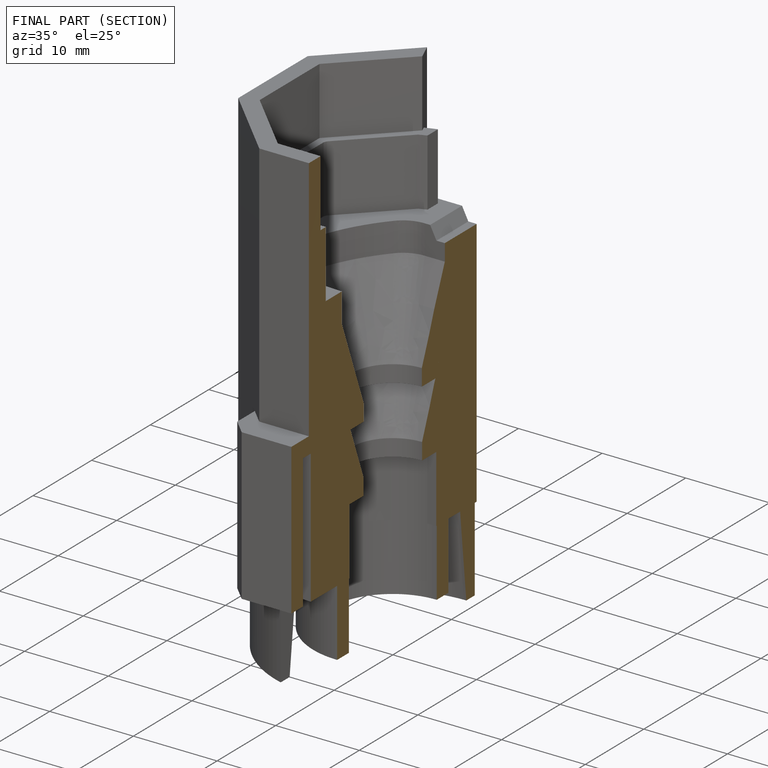
[diagram: finished part — half-section view (interior)]
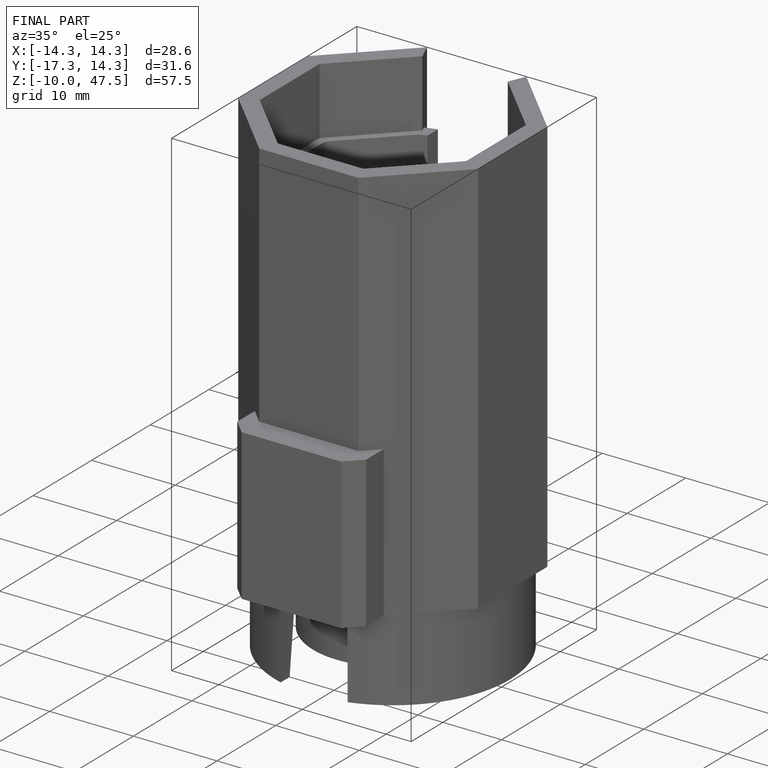
[diagram: finished part — iso view with bounding-box wireframe]
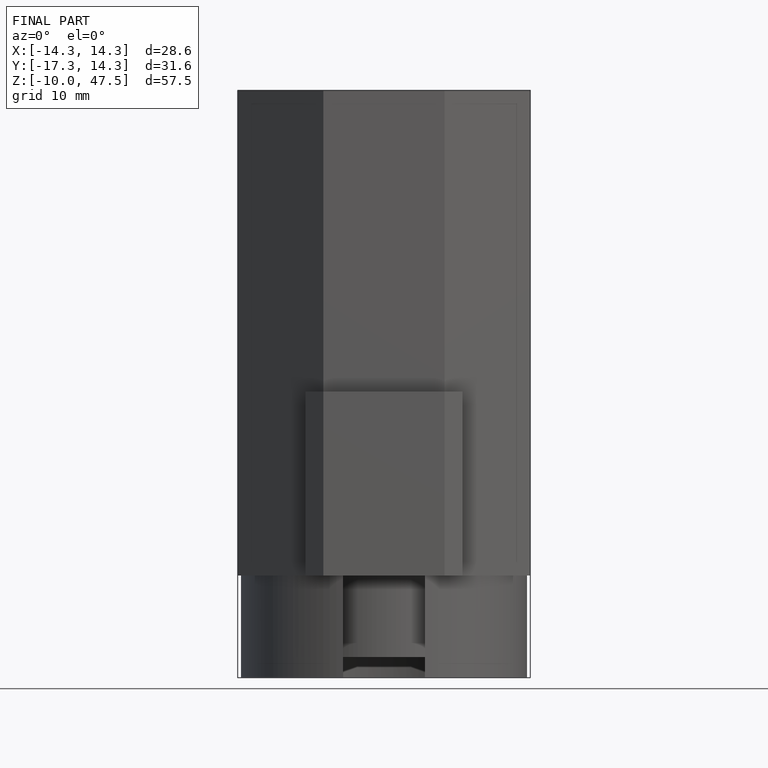
[diagram: finished part — front view with bounding-box wireframe]
